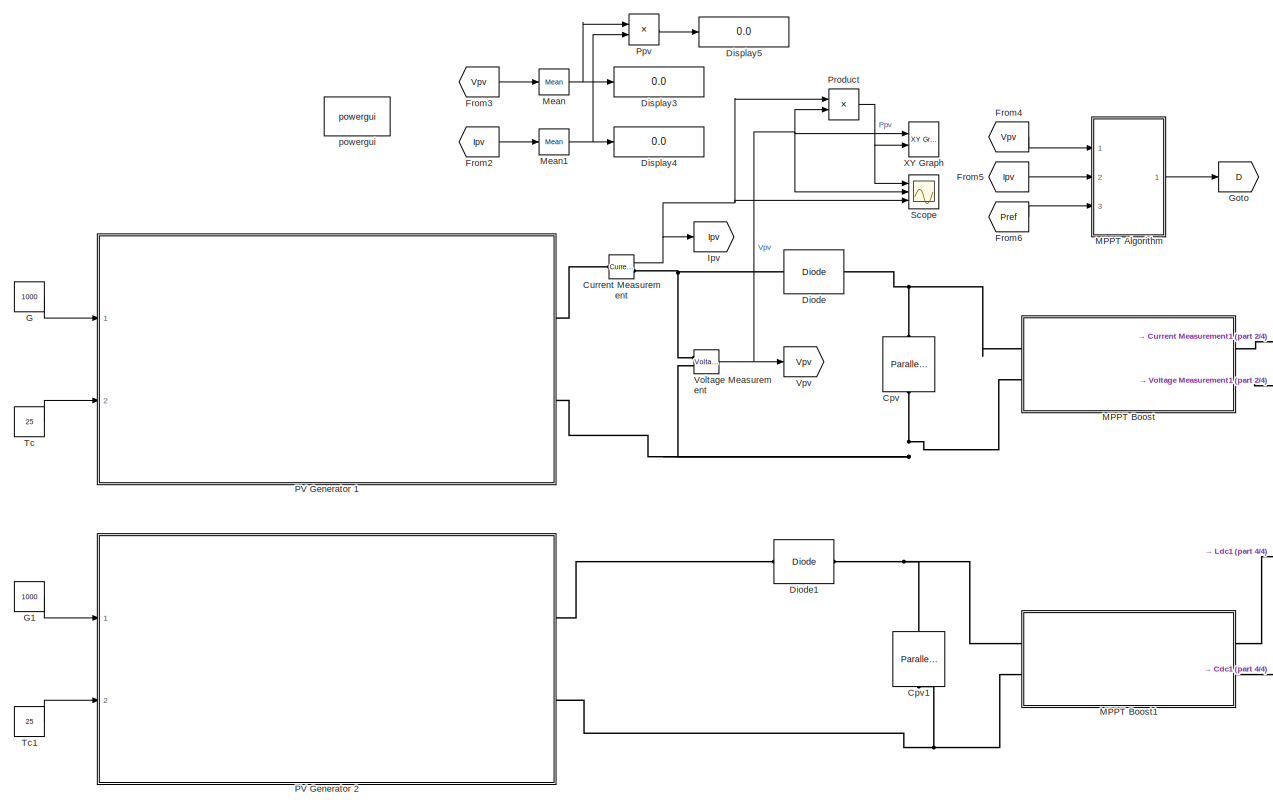
[diagram: root canvas - part 1/4, left side, full height]
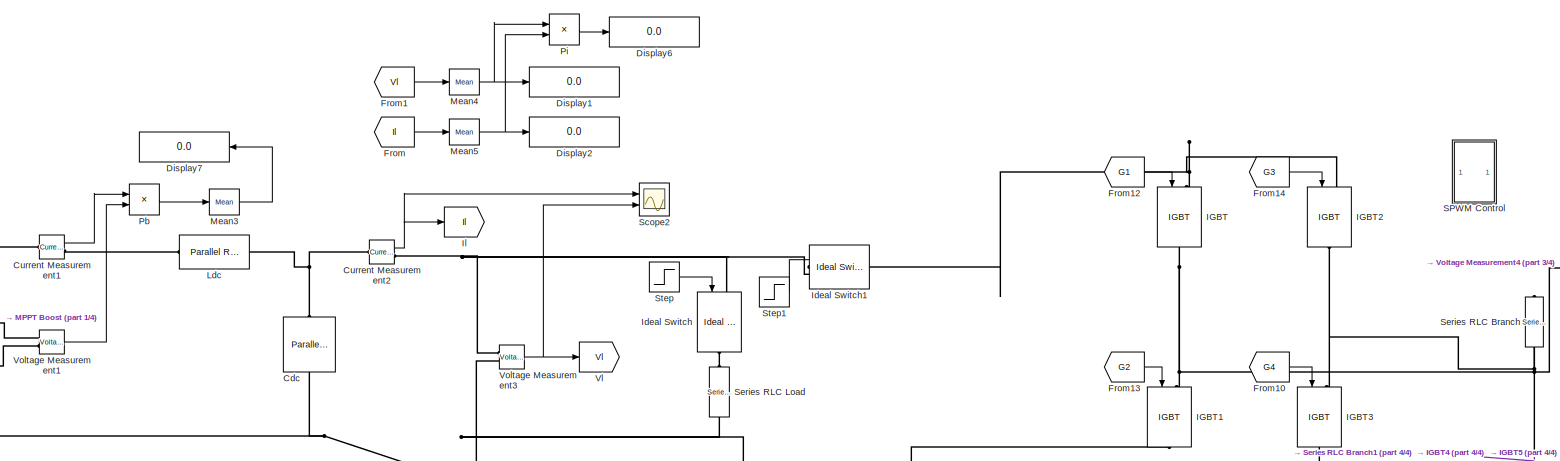
[diagram: root canvas - part 2/4, top center region]
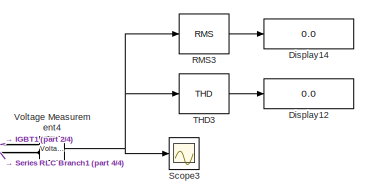
[diagram: root canvas - part 3/4, middle right region]
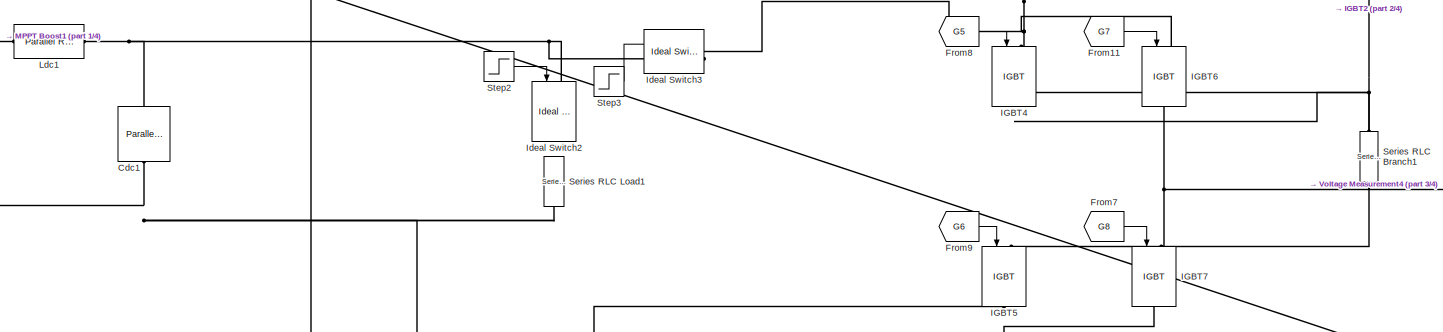
[diagram: root canvas - part 4/4, bottom center region]
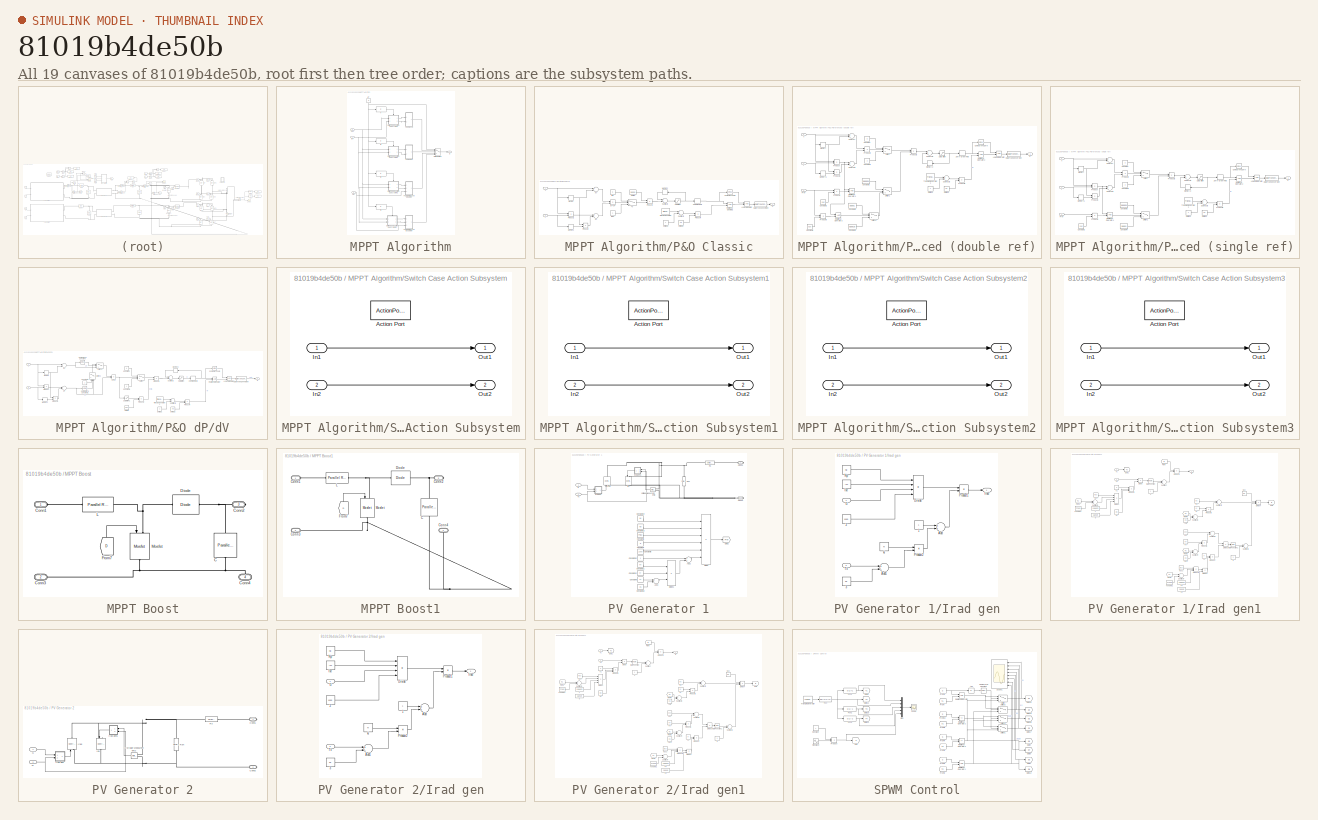
[diagram: thumbnail index - all 19 canvases of the model, root first then tree order]
MODEL slx_81019b4de50b
KIND model
CONFIG AbsTol = auto
CONFIG EnableMultiTasking = off
CONFIG FixedStep = auto
CONFIG MaxStep = auto
CONFIG MinStep = auto
CONFIG RelTol = 1e-3
CONFIG SampleTimeConstraint = Unconstrained
CONFIG Solver = ode23tb
CONFIG SolverName = ode23tb
CONFIG StartTime = 0.0
CONFIG StopTime = 2
BLOCK [Reference] Cdc  REF=powerlib/Elements/Parallel RLC Branch
  AttributesFormatString = \n
  Ports = [0, 0, 0, 0, 0, 1, 1]
  SourceBlock = powerlib/Elements/Parallel RLC Branch
  SourceType = Parallel RLC Branch
BLOCK [Reference] Cdc1  REF=powerlib/Elements/Parallel RLC Branch
  AttributesFormatString = \n
  Ports = [0, 0, 0, 0, 0, 1, 1]
  SourceBlock = powerlib/Elements/Parallel RLC Branch
  SourceType = Parallel RLC Branch
BLOCK [Reference] Cpv  REF=powerlib/Elements/Parallel RLC Branch
  AttributesFormatString = \n
  Ports = [0, 0, 0, 0, 0, 1, 1]
  SourceBlock = powerlib/Elements/Parallel RLC Branch
  SourceType = Parallel RLC Branch
BLOCK [Reference] Cpv1  REF=powerlib/Elements/Parallel RLC Branch
  AttributesFormatString = \n
  Ports = [0, 0, 0, 0, 0, 1, 1]
  SourceBlock = powerlib/Elements/Parallel RLC Branch
  SourceType = Parallel RLC Branch
BLOCK [Reference] Current Measurement  REF=powerlib/Measurements/Current Measurement
  Ports = [0, 1, 0, 0, 0, 1, 1]
  SourceBlock = powerlib/Measurements/Current Measurement
  SourceType = Current Measurement
  UserDataPersistent = on
BLOCK [Reference] Current Measurement1  REF=powerlib/Measurements/Current Measurement
  Ports = [0, 1, 0, 0, 0, 1, 1]
  SourceBlock = powerlib/Measurements/Current Measurement
  SourceType = Current Measurement
  UserDataPersistent = on
BLOCK [Reference] Current Measurement2  REF=powerlib/Measurements/Current Measurement
  Ports = [0, 1, 0, 0, 0, 1, 1]
  SourceBlock = powerlib/Measurements/Current Measurement
  SourceType = Current Measurement
  UserDataPersistent = on
BLOCK [Reference] Diode  REF=powerlib/Power
Electronics/Diode
  Ports = [0, 0, 0, 0, 0, 1, 1]
  SourceBlock = powerlib/Power\nElectronics/Diode
  SourceType = Diode
BLOCK [Reference] Diode1  REF=powerlib/Power
Electronics/Diode
  Ports = [0, 0, 0, 0, 0, 1, 1]
  SourceBlock = powerlib/Power\nElectronics/Diode
  SourceType = Diode
BLOCK [Display] Display1
  Decimation = 1
  Ports = [1]
BLOCK [Display] Display12
  Decimation = 1
  Ports = [1]
BLOCK [Display] Display14
  Decimation = 1
  Ports = [1]
BLOCK [Display] Display2
  Decimation = 1
  Ports = [1]
BLOCK [Display] Display3
  Decimation = 1
  Ports = [1]
BLOCK [Display] Display4
  Decimation = 1
  Ports = [1]
BLOCK [Display] Display5
  Decimation = 2
  Ports = [1]
BLOCK [Display] Display6
  Decimation = 2
  Ports = [1]
BLOCK [Display] Display7
  Decimation = 2
  Ports = [1]
BLOCK [From] From
  GotoTag = Il
  TagVisibility = global
BLOCK [From] From1
  GotoTag = Vl
  TagVisibility = global
BLOCK [From] From10
  GotoTag = G4
  TagVisibility = global
BLOCK [From] From11
  GotoTag = G7
  TagVisibility = global
BLOCK [From] From12
  GotoTag = G1
  TagVisibility = global
BLOCK [From] From13
  GotoTag = G2
  TagVisibility = global
BLOCK [From] From14
  GotoTag = G3
  TagVisibility = global
BLOCK [From] From2
  GotoTag = Ipv
  TagVisibility = global
BLOCK [From] From3
  GotoTag = Vpv
  TagVisibility = global
BLOCK [From] From4
  GotoTag = Vpv
  TagVisibility = global
BLOCK [From] From5
  GotoTag = Ipv
  TagVisibility = global
BLOCK [From] From6
  GotoTag = Pref
  TagVisibility = global
BLOCK [From] From7
  GotoTag = G8
  TagVisibility = global
BLOCK [From] From8
  GotoTag = G5
  TagVisibility = global
BLOCK [From] From9
  GotoTag = G6
  TagVisibility = global
BLOCK [Constant] G
  Value = 1000
BLOCK [Constant] G1
  Value = 1000
BLOCK [Goto] Goto
  GotoTag = D
  TagVisibility = global
BLOCK [Reference] IGBT  REF=powerlib/Power
Electronics/IGBT
  Ports = [1, 0, 0, 0, 0, 1, 1]
  SourceBlock = powerlib/Power\nElectronics/IGBT
  SourceType = IGBT
BLOCK [Reference] IGBT1  REF=powerlib/Power
Electronics/IGBT
  Ports = [1, 0, 0, 0, 0, 1, 1]
  SourceBlock = powerlib/Power\nElectronics/IGBT
  SourceType = IGBT
BLOCK [Reference] IGBT2  REF=powerlib/Power
Electronics/IGBT
  Ports = [1, 0, 0, 0, 0, 1, 1]
  SourceBlock = powerlib/Power\nElectronics/IGBT
  SourceType = IGBT
BLOCK [Reference] IGBT3  REF=powerlib/Power
Electronics/IGBT
  Ports = [1, 0, 0, 0, 0, 1, 1]
  SourceBlock = powerlib/Power\nElectronics/IGBT
  SourceType = IGBT
BLOCK [Reference] IGBT4  REF=powerlib/Power
Electronics/IGBT
  Ports = [1, 0, 0, 0, 0, 1, 1]
  SourceBlock = powerlib/Power\nElectronics/IGBT
  SourceType = IGBT
BLOCK [Reference] IGBT5  REF=powerlib/Power
Electronics/IGBT
  Ports = [1, 0, 0, 0, 0, 1, 1]
  SourceBlock = powerlib/Power\nElectronics/IGBT
  SourceType = IGBT
BLOCK [Reference] IGBT6  REF=powerlib/Power
Electronics/IGBT
  Ports = [1, 0, 0, 0, 0, 1, 1]
  SourceBlock = powerlib/Power\nElectronics/IGBT
  SourceType = IGBT
BLOCK [Reference] IGBT7  REF=powerlib/Power
Electronics/IGBT
  Ports = [1, 0, 0, 0, 0, 1, 1]
  SourceBlock = powerlib/Power\nElectronics/IGBT
  SourceType = IGBT
BLOCK [Reference] Ideal Switch  REF=powerlib/Power
Electronics/Ideal Switch
  Ports = [1, 0, 0, 0, 0, 1, 1]
  SourceBlock = powerlib/Power\nElectronics/Ideal Switch
  SourceType = Ideal Switch
BLOCK [Reference] Ideal Switch1  REF=powerlib/Power
Electronics/Ideal Switch
  Ports = [1, 0, 0, 0, 0, 1, 1]
  SourceBlock = powerlib/Power\nElectronics/Ideal Switch
  SourceType = Ideal Switch
BLOCK [Reference] Ideal Switch2  REF=powerlib/Power
Electronics/Ideal Switch
  Ports = [1, 0, 0, 0, 0, 1, 1]
  SourceBlock = powerlib/Power\nElectronics/Ideal Switch
  SourceType = Ideal Switch
BLOCK [Reference] Ideal Switch3  REF=powerlib/Power
Electronics/Ideal Switch
  Ports = [1, 0, 0, 0, 0, 1, 1]
  SourceBlock = powerlib/Power\nElectronics/Ideal Switch
  SourceType = Ideal Switch
BLOCK [Goto] Il
  GotoTag = Il
  TagVisibility = global
BLOCK [Goto] Ipv
  GotoTag = Ipv
  TagVisibility = global
BLOCK [Reference] Ldc  REF=powerlib/Elements/Parallel RLC Branch
  AttributesFormatString = \n
  Ports = [0, 0, 0, 0, 0, 1, 1]
  SourceBlock = powerlib/Elements/Parallel RLC Branch
  SourceType = Parallel RLC Branch
BLOCK [Reference] Ldc1  REF=powerlib/Elements/Parallel RLC Branch
  AttributesFormatString = \n
  Ports = [0, 0, 0, 0, 0, 1, 1]
  SourceBlock = powerlib/Elements/Parallel RLC Branch
  SourceType = Parallel RLC Branch
BLOCK [SubSystem] MPPT Algorithm
  Ports = [3, 1]
  RequestExecContextInheritance = off
  Variant = off
BLOCK [Outport] MPPT Algorithm/D
  IconDisplay = Port number
BLOCK [If] MPPT Algorithm/If
  IfExpression = u1 == 1
  Ports = [1, 1]
  ShowElse = off
BLOCK [If] MPPT Algorithm/If1
  IfExpression = u1 == 2
  Ports = [1, 1]
  ShowElse = off
BLOCK [If] MPPT Algorithm/If2
  IfExpression = u1 == 3
  Ports = [1, 1]
  ShowElse = off
BLOCK [If] MPPT Algorithm/If3
  IfExpression = u1 == 4
  Ports = [1, 1]
  ShowElse = off
BLOCK [Inport] MPPT Algorithm/Ipv
  IconDisplay = Port number
  Port = 2
BLOCK [MultiPortSwitch] MPPT Algorithm/Multiport Switch
  DataPortIndices = {1,2,3,4}
  DataPortOrder = Specify indices
  InputSameDT = off
  Ports = [5, 1]
  SaturateOnIntegerOverflow = off
BLOCK [Constant] MPPT Algorithm/Nº
  Value = N
BLOCK [SubSystem] MPPT Algorithm/P&O Classic
  Ports = [2, 1]
  RequestExecContextInheritance = off
  Variant = off
BLOCK [Switch] MPPT Algorithm/P&O Classic/>0
  InputSameDT = off
  SaturateOnIntegerOverflow = off
  ZeroCross = off
BLOCK [Reference] MPPT Algorithm/P&O Classic/Compare To Zero  REF=simulink/Logic and Bit
Operations/Compare
To Zero
  Ports = [1, 1]
  SourceBlock = simulink/Logic and Bit\nOperations/Compare\nTo Zero
  SourceType = Compare To Zero
BLOCK [Outport] MPPT Algorithm/P&O Classic/D
  IconDisplay = Port number
BLOCK [DataTypeConversion] MPPT Algorithm/P&O Classic/Data Type Conversion
  OutDataTypeStr = double
  RndMeth = Floor
  SaturateOnIntegerOverflow = off
BLOCK [Constant] MPPT Algorithm/P&O Classic/Delta D
  Value = 0.0001
BLOCK [Constant] MPPT Algorithm/P&O Classic/Delta D1
BLOCK [Constant] MPPT Algorithm/P&O Classic/Delta D2
  Value = 0.5
BLOCK [Inport] MPPT Algorithm/P&O Classic/I
  IconDisplay = Port number
  Port = 2
BLOCK [Logic] MPPT Algorithm/P&O Classic/Logical Operator
  AllPortsSameDT = off
  OutDataTypeStr = boolean
  Ports = [2, 1]
BLOCK [Memory] MPPT Algorithm/P&O Classic/Memory
BLOCK [Memory] MPPT Algorithm/P&O Classic/Memory1
  X0 = 8.21
BLOCK [Memory] MPPT Algorithm/P&O Classic/Memory2
  X0 = 0.5
BLOCK [Product] MPPT Algorithm/P&O Classic/Product1
  InputSameDT = off
  OutDataTypeStr = Inherit: Inherit via internal rule
  Ports = [2, 1]
  RndMeth = Floor
  SaturateOnIntegerOverflow = off
BLOCK [Product] MPPT Algorithm/P&O Classic/Product2
  InputSameDT = off
  OutDataTypeStr = Inherit: Inherit via internal rule
  Ports = [2, 1]
  RndMeth = Floor
  SaturateOnIntegerOverflow = off
BLOCK [Product] MPPT Algorithm/P&O Classic/Product3
  InputSameDT = off
  OutDataTypeStr = Inherit: Inherit via internal rule
  Ports = [2, 1]
  RndMeth = Floor
  SaturateOnIntegerOverflow = off
BLOCK [Product] MPPT Algorithm/P&O Classic/Product4
  InputSameDT = off
  OutDataTypeStr = Inherit: Inherit via internal rule
  Ports = [2, 1]
  RndMeth = Floor
  SaturateOnIntegerOverflow = off
BLOCK [RelationalOperator] MPPT Algorithm/P&O Classic/Relational Operator1
  InputSameDT = off
  OutDataTypeStr = boolean
  Ports = [2, 1]
  RndMeth = Simplest
BLOCK [Saturate] MPPT Algorithm/P&O Classic/Saturation
  InputPortMap = u0
  LowerLimit = 0
  Ports = [1, 1]
  UpperLimit = 1
BLOCK [Sum] MPPT Algorithm/P&O Classic/Subtract2
  InputSameDT = off
  OutDataTypeStr = Inherit: Inherit via internal rule
  Ports = [2, 1]
  SaturateOnIntegerOverflow = off
BLOCK [Sum] MPPT Algorithm/P&O Classic/Subtract3
  InputSameDT = off
  OutDataTypeStr = Inherit: Inherit via internal rule
  Ports = [2, 1]
  SaturateOnIntegerOverflow = off
BLOCK [Reference] MPPT Algorithm/P&O Classic/Triangle Generator  REF=powerlib_meascontrol/Pulse & Signal
Generators/Triangle
Generator
  Ports = [0, 1]
  SourceBlock = powerlib_meascontrol/Pulse & Signal\nGenerators/Triangle\nGenerator
  SourceType = Triangle Generator
BLOCK [Inport] MPPT Algorithm/P&O Classic/V
  IconDisplay = Port number
BLOCK [ZeroOrderHold] MPPT Algorithm/P&O Classic/Zero-Order Hold
  SampleTime = 1/5000
BLOCK [Sum] MPPT Algorithm/P&O Classic/dP
  InputSameDT = off
  Inputs = +-
  OutDataTypeStr = Inherit: Inherit via internal rule
  Ports = [2, 1]
  SaturateOnIntegerOverflow = off
BLOCK [Sum] MPPT Algorithm/P&O Classic/dV
  InputSameDT = off
  Inputs = +-
  OutDataTypeStr = Inherit: Inherit via internal rule
  Ports = [2, 1]
  SaturateOnIntegerOverflow = off
BLOCK [Product] MPPT Algorithm/P&O Classic/dV*dP
  InputSameDT = off
  OutDataTypeStr = Inherit: Inherit via internal rule
  Ports = [2, 1]
  RndMeth = Floor
  SaturateOnIntegerOverflow = off
BLOCK [Constant] MPPT Algorithm/P&O Classic/false
BLOCK [Constant] MPPT Algorithm/P&O Classic/true
  Value = -1
BLOCK [SubSystem] MPPT Algorithm/P&O Referenced (double ref)
  Ports = [3, 1]
  RequestExecContextInheritance = off
  Variant = off
BLOCK [Reference] MPPT Algorithm/P&O Referenced (double ref)/Compare To Zero  REF=simulink/Logic and Bit
Operations/Compare
To Zero
  Ports = [1, 1]
  SourceBlock = simulink/Logic and Bit\nOperations/Compare\nTo Zero
  SourceType = Compare To Zero
BLOCK [Constant] MPPT Algorithm/P&O Referenced (double ref)/Constant
  Value = -1
BLOCK [Constant] MPPT Algorithm/P&O Referenced (double ref)/Constant1
BLOCK [Constant] MPPT Algorithm/P&O Referenced (double ref)/Constant2
  Value = 0.95
BLOCK [Constant] MPPT Algorithm/P&O Referenced (double ref)/Constant3
  Value = 0.00001
BLOCK [Constant] MPPT Algorithm/P&O Referenced (double ref)/Constant4
  Value = 0.00015
BLOCK [Constant] MPPT Algorithm/P&O Referenced (double ref)/Constant5
  Value = 0.90
BLOCK [Constant] MPPT Algorithm/P&O Referenced (double ref)/Constant6
  Value = 0.0001
BLOCK [Outport] MPPT Algorithm/P&O Referenced (double ref)/D
  IconDisplay = Port number
BLOCK [DataTypeConversion] MPPT Algorithm/P&O Referenced (double ref)/Data Type Conversion
  OutDataTypeStr = double
  RndMeth = Floor
  SaturateOnIntegerOverflow = off
BLOCK [Constant] MPPT Algorithm/P&O Referenced (double ref)/Delta D1
BLOCK [Constant] MPPT Algorithm/P&O Referenced (double ref)/Delta D2
  Value = 0.5
BLOCK [Inport] MPPT Algorithm/P&O Referenced (double ref)/I
  IconDisplay = Port number
  Port = 2
BLOCK [Logic] MPPT Algorithm/P&O Referenced (double ref)/Logical Operator
  AllPortsSameDT = off
  OutDataTypeStr = boolean
  Ports = [2, 1]
BLOCK [Memory] MPPT Algorithm/P&O Referenced (double ref)/Memory
BLOCK [Memory] MPPT Algorithm/P&O Referenced (double ref)/Memory1
  X0 = 8.21
BLOCK [Memory] MPPT Algorithm/P&O Referenced (double ref)/Memory2
  X0 = 0.5
BLOCK [Inport] MPPT Algorithm/P&O Referenced (double ref)/Pref
  IconDisplay = Port number
  Port = 3
BLOCK [Product] MPPT Algorithm/P&O Referenced (double ref)/Product
  InputSameDT = off
  OutDataTypeStr = Inherit: Inherit via internal rule
  Ports = [2, 1]
  RndMeth = Floor
  SaturateOnIntegerOverflow = off
BLOCK [Product] MPPT Algorithm/P&O Referenced (double ref)/Product1
  InputSameDT = off
  OutDataTypeStr = Inherit: Inherit via internal rule
  Ports = [2, 1]
  RndMeth = Floor
  SaturateOnIntegerOverflow = off
BLOCK [Product] MPPT Algorithm/P&O Referenced (double ref)/Product2
  InputSameDT = off
  OutDataTypeStr = Inherit: Inherit via internal rule
  Ports = [2, 1]
  RndMeth = Floor
  SaturateOnIntegerOverflow = off
BLOCK [Product] MPPT Algorithm/P&O Referenced (double ref)/Product3
  InputSameDT = off
  OutDataTypeStr = Inherit: Inherit via internal rule
  Ports = [2, 1]
  RndMeth = Floor
  SaturateOnIntegerOverflow = off
BLOCK [Product] MPPT Algorithm/P&O Referenced (double ref)/Product4
  InputSameDT = off
  OutDataTypeStr = Inherit: Inherit via internal rule
  Ports = [2, 1]
  RndMeth = Floor
  SaturateOnIntegerOverflow = off
BLOCK [Product] MPPT Algorithm/P&O Referenced (double ref)/Product5
  InputSameDT = off
  OutDataTypeStr = Inherit: Inherit via internal rule
  Ports = [2, 1]
  RndMeth = Floor
  SaturateOnIntegerOverflow = off
BLOCK [Product] MPPT Algorithm/P&O Referenced (double ref)/Product6
  InputSameDT = off
  OutDataTypeStr = Inherit: Inherit via internal rule
  Ports = [2, 1]
  RndMeth = Floor
  SaturateOnIntegerOverflow = off
BLOCK [RelationalOperator] MPPT Algorithm/P&O Referenced (double ref)/Relational Operator1
  InputSameDT = off
  OutDataTypeStr = boolean
  Ports = [2, 1]
  RndMeth = Simplest
BLOCK [RelationalOperator] MPPT Algorithm/P&O Referenced (double ref)/Relational Operator2
  InputSameDT = off
  OutDataTypeStr = boolean
  Ports = [2, 1]
  RndMeth = Simplest
BLOCK [RelationalOperator] MPPT Algorithm/P&O Referenced (double ref)/Relational Operator3
  InputSameDT = off
  OutDataTypeStr = boolean
  Ports = [2, 1]
  RndMeth = Simplest
BLOCK [Saturate] MPPT Algorithm/P&O Referenced (double ref)/Saturation
  InputPortMap = u0
  LowerLimit = 0
  Ports = [1, 1]
  UpperLimit = 1
BLOCK [Sum] MPPT Algorithm/P&O Referenced (double ref)/Subtract
  InputSameDT = off
  Inputs = +-
  OutDataTypeStr = Inherit: Inherit via internal rule
  Ports = [2, 1]
  SaturateOnIntegerOverflow = off
BLOCK [Sum] MPPT Algorithm/P&O Referenced (double ref)/Subtract1
  InputSameDT = off
  Inputs = +-
  OutDataTypeStr = Inherit: Inherit via internal rule
  Ports = [2, 1]
  SaturateOnIntegerOverflow = off
BLOCK [Sum] MPPT Algorithm/P&O Referenced (double ref)/Subtract2
  InputSameDT = off
  OutDataTypeStr = Inherit: Inherit via internal rule
  Ports = [2, 1]
  SaturateOnIntegerOverflow = off
BLOCK [Sum] MPPT Algorithm/P&O Referenced (double ref)/Subtract3
  InputSameDT = off
  OutDataTypeStr = Inherit: Inherit via internal rule
  Ports = [2, 1]
  SaturateOnIntegerOverflow = off
BLOCK [Switch] MPPT Algorithm/P&O Referenced (double ref)/Switch
  InputSameDT = off
  SaturateOnIntegerOverflow = off
BLOCK [Switch] MPPT Algorithm/P&O Referenced (double ref)/Switch1
  Criteria = u2 > Threshold
  InputSameDT = off
  SaturateOnIntegerOverflow = off
BLOCK [Switch] MPPT Algorithm/P&O Referenced (double ref)/Switch2
  Criteria = u2 > Threshold
  InputSameDT = off
  SaturateOnIntegerOverflow = off
BLOCK [Reference] MPPT Algorithm/P&O Referenced (double ref)/Triangle Generator1  REF=powerlib_meascontrol/Pulse & Signal
Generators/Triangle
Generator
  Ports = [0, 1]
  SourceBlock = powerlib_meascontrol/Pulse & Signal\nGenerators/Triangle\nGenerator
  SourceType = Triangle Generator
BLOCK [Inport] MPPT Algorithm/P&O Referenced (double ref)/V
  IconDisplay = Port number
BLOCK [ZeroOrderHold] MPPT Algorithm/P&O Referenced (double ref)/Zero-Order Hold
  SampleTime = 1/5000
BLOCK [SubSystem] MPPT Algorithm/P&O Referenced (single ref)
  Ports = [3, 1]
  RequestExecContextInheritance = off
  Variant = off
BLOCK [Reference] MPPT Algorithm/P&O Referenced (single ref)/Compare To Zero  REF=simulink/Logic and Bit
Operations/Compare
To Zero
  Ports = [1, 1]
  SourceBlock = simulink/Logic and Bit\nOperations/Compare\nTo Zero
  SourceType = Compare To Zero
BLOCK [Constant] MPPT Algorithm/P&O Referenced (single ref)/Constant
  Value = -1
BLOCK [Constant] MPPT Algorithm/P&O Referenced (single ref)/Constant1
BLOCK [Constant] MPPT Algorithm/P&O Referenced (single ref)/Constant2
  Value = 0.95
BLOCK [Constant] MPPT Algorithm/P&O Referenced (single ref)/Constant3
  Value = 0.00001
BLOCK [Constant] MPPT Algorithm/P&O Referenced (single ref)/Constant4
  Value = 0.0001
BLOCK [Outport] MPPT Algorithm/P&O Referenced (single ref)/D
  IconDisplay = Port number
BLOCK [DataTypeConversion] MPPT Algorithm/P&O Referenced (single ref)/Data Type Conversion
  OutDataTypeStr = double
  RndMeth = Floor
  SaturateOnIntegerOverflow = off
BLOCK [Constant] MPPT Algorithm/P&O Referenced (single ref)/Delta D1
BLOCK [Constant] MPPT Algorithm/P&O Referenced (single ref)/Delta D2
  Value = 0.5
BLOCK [Inport] MPPT Algorithm/P&O Referenced (single ref)/I
  IconDisplay = Port number
  Port = 2
BLOCK [Logic] MPPT Algorithm/P&O Referenced (single ref)/Logical Operator
  AllPortsSameDT = off
  OutDataTypeStr = boolean
  Ports = [2, 1]
BLOCK [Memory] MPPT Algorithm/P&O Referenced (single ref)/Memory
BLOCK [Memory] MPPT Algorithm/P&O Referenced (single ref)/Memory1
  X0 = 8.21
BLOCK [Memory] MPPT Algorithm/P&O Referenced (single ref)/Memory2
  X0 = 0.5
BLOCK [Inport] MPPT Algorithm/P&O Referenced (single ref)/Pref
  IconDisplay = Port number
  Port = 3
BLOCK [Product] MPPT Algorithm/P&O Referenced (single ref)/Product
  InputSameDT = off
  OutDataTypeStr = Inherit: Inherit via internal rule
  Ports = [2, 1]
  RndMeth = Floor
  SaturateOnIntegerOverflow = off
BLOCK [Product] MPPT Algorithm/P&O Referenced (single ref)/Product1
  InputSameDT = off
  OutDataTypeStr = Inherit: Inherit via internal rule
  Ports = [2, 1]
  RndMeth = Floor
  SaturateOnIntegerOverflow = off
BLOCK [Product] MPPT Algorithm/P&O Referenced (single ref)/Product2
  InputSameDT = off
  OutDataTypeStr = Inherit: Inherit via internal rule
  Ports = [2, 1]
  RndMeth = Floor
  SaturateOnIntegerOverflow = off
BLOCK [Product] MPPT Algorithm/P&O Referenced (single ref)/Product3
  InputSameDT = off
  OutDataTypeStr = Inherit: Inherit via internal rule
  Ports = [2, 1]
  RndMeth = Floor
  SaturateOnIntegerOverflow = off
BLOCK [Product] MPPT Algorithm/P&O Referenced (single ref)/Product4
  InputSameDT = off
  OutDataTypeStr = Inherit: Inherit via internal rule
  Ports = [2, 1]
  RndMeth = Floor
  SaturateOnIntegerOverflow = off
BLOCK [Product] MPPT Algorithm/P&O Referenced (single ref)/Product5
  InputSameDT = off
  OutDataTypeStr = Inherit: Inherit via internal rule
  Ports = [2, 1]
  RndMeth = Floor
  SaturateOnIntegerOverflow = off
BLOCK [RelationalOperator] MPPT Algorithm/P&O Referenced (single ref)/Relational Operator1
  InputSameDT = off
  OutDataTypeStr = boolean
  Ports = [2, 1]
  RndMeth = Simplest
BLOCK [RelationalOperator] MPPT Algorithm/P&O Referenced (single ref)/Relational Operator2
  InputSameDT = off
  OutDataTypeStr = boolean
  Ports = [2, 1]
  RndMeth = Simplest
BLOCK [Saturate] MPPT Algorithm/P&O Referenced (single ref)/Saturation
  InputPortMap = u0
  LowerLimit = 0
  Ports = [1, 1]
  UpperLimit = 1
BLOCK [Sum] MPPT Algorithm/P&O Referenced (single ref)/Subtract
  InputSameDT = off
  Inputs = +-
  OutDataTypeStr = Inherit: Inherit via internal rule
  Ports = [2, 1]
  SaturateOnIntegerOverflow = off
BLOCK [Sum] MPPT Algorithm/P&O Referenced (single ref)/Subtract1
  InputSameDT = off
  Inputs = +-
  OutDataTypeStr = Inherit: Inherit via internal rule
  Ports = [2, 1]
  SaturateOnIntegerOverflow = off
BLOCK [Sum] MPPT Algorithm/P&O Referenced (single ref)/Subtract2
  InputSameDT = off
  OutDataTypeStr = Inherit: Inherit via internal rule
  Ports = [2, 1]
  SaturateOnIntegerOverflow = off
BLOCK [Sum] MPPT Algorithm/P&O Referenced (single ref)/Subtract3
  InputSameDT = off
  OutDataTypeStr = Inherit: Inherit via internal rule
  Ports = [2, 1]
  SaturateOnIntegerOverflow = off
BLOCK [Switch] MPPT Algorithm/P&O Referenced (single ref)/Switch
  InputSameDT = off
  SaturateOnIntegerOverflow = off
BLOCK [Switch] MPPT Algorithm/P&O Referenced (single ref)/Switch1
  Criteria = u2 > Threshold
  InputSameDT = off
  SaturateOnIntegerOverflow = off
BLOCK [Reference] MPPT Algorithm/P&O Referenced (single ref)/Triangle Generator1  REF=powerlib_meascontrol/Pulse & Signal
Generators/Triangle
Generator
  Ports = [0, 1]
  SourceBlock = powerlib_meascontrol/Pulse & Signal\nGenerators/Triangle\nGenerator
  SourceType = Triangle Generator
BLOCK [Inport] MPPT Algorithm/P&O Referenced (single ref)/V
  IconDisplay = Port number
BLOCK [ZeroOrderHold] MPPT Algorithm/P&O Referenced (single ref)/Zero-Order Hold
  SampleTime = 1/5000
BLOCK [SubSystem] MPPT Algorithm/P&O dP//dV
  Ports = [2, 1]
  RequestExecContextInheritance = off
  Variant = off
BLOCK [Reference] MPPT Algorithm/P&O dP//dV/Compare To Constant  REF=simulink/Logic and Bit
Operations/Compare
To Constant
  Ports = [1, 1]
  SourceBlock = simulink/Logic and Bit\nOperations/Compare\nTo Constant
  SourceType = Compare To Constant
BLOCK [Reference] MPPT Algorithm/P&O dP//dV/Compare To Constant1  REF=simulink/Logic and Bit
Operations/Compare
To Constant
  Ports = [1, 1]
  SourceBlock = simulink/Logic and Bit\nOperations/Compare\nTo Constant
  SourceType = Compare To Constant
BLOCK [Reference] MPPT Algorithm/P&O dP//dV/Compare To Zero  REF=simulink/Logic and Bit
Operations/Compare
To Zero
  Ports = [1, 1]
  SourceBlock = simulink/Logic and Bit\nOperations/Compare\nTo Zero
  SourceType = Compare To Zero
BLOCK [Constant] MPPT Algorithm/P&O dP//dV/Constant
  Value = -1
BLOCK [Constant] MPPT Algorithm/P&O dP//dV/Constant1
BLOCK [Constant] MPPT Algorithm/P&O dP//dV/Constant2
BLOCK [Outport] MPPT Algorithm/P&O dP//dV/D
  IconDisplay = Port number
BLOCK [DataTypeConversion] MPPT Algorithm/P&O dP//dV/Data Type Conversion
  OutDataTypeStr = double
  RndMeth = Floor
  SaturateOnIntegerOverflow = off
BLOCK [Constant] MPPT Algorithm/P&O dP//dV/Delta D
  Value = 0.001
BLOCK [Constant] MPPT Algorithm/P&O dP//dV/Delta D1
BLOCK [Constant] MPPT Algorithm/P&O dP//dV/Delta D2
  Value = 0.5
BLOCK [Inport] MPPT Algorithm/P&O dP//dV/I
  IconDisplay = Port number
  Port = 2
BLOCK [Logic] MPPT Algorithm/P&O dP//dV/Logical Operator
  AllPortsSameDT = off
  OutDataTypeStr = boolean
  Ports = [2, 1]
BLOCK [Memory] MPPT Algorithm/P&O dP//dV/Memory
BLOCK [Memory] MPPT Algorithm/P&O dP//dV/Memory1
  X0 = 8.21
BLOCK [Memory] MPPT Algorithm/P&O dP//dV/Memory2
  X0 = 0.5
BLOCK [Product] MPPT Algorithm/P&O dP//dV/Product
  InputSameDT = off
  OutDataTypeStr = Inherit: Inherit via internal rule
  Ports = [2, 1]
  RndMeth = Floor
  SaturateOnIntegerOverflow = off
BLOCK [Product] MPPT Algorithm/P&O dP//dV/Product1
  InputSameDT = off
  OutDataTypeStr = Inherit: Inherit via internal rule
  Ports = [2, 1]
  RndMeth = Floor
  SaturateOnIntegerOverflow = off
BLOCK [Product] MPPT Algorithm/P&O dP//dV/Product2
  InputSameDT = off
  OutDataTypeStr = Inherit: Inherit via internal rule
  Ports = [2, 1]
  RndMeth = Floor
  SaturateOnIntegerOverflow = off
BLOCK [Product] MPPT Algorithm/P&O dP//dV/Product3
  InputSameDT = off
  OutDataTypeStr = Inherit: Inherit via internal rule
  Ports = [2, 1]
  RndMeth = Floor
  SaturateOnIntegerOverflow = off
BLOCK [Product] MPPT Algorithm/P&O dP//dV/Product4
  InputSameDT = off
  OutDataTypeStr = Inherit: Inherit via internal rule
  Ports = [2, 1]
  RndMeth = Floor
  SaturateOnIntegerOverflow = off
BLOCK [RelationalOperator] MPPT Algorithm/P&O dP//dV/Relational Operator
  InputSameDT = off
  OutDataTypeStr = boolean
  Ports = [2, 1]
  RndMeth = Simplest
BLOCK [Saturate] MPPT Algorithm/P&O dP//dV/Saturation
  InputPortMap = u0
  LowerLimit = 0
  Ports = [1, 1]
  UpperLimit = 1
  ZeroCross = off
BLOCK [Saturate] MPPT Algorithm/P&O dP//dV/Saturation1
  InputPortMap = u0
  LowerLimit = 0.1
  Ports = [1, 1]
  UpperLimit = 1
  ZeroCross = off
BLOCK [Sum] MPPT Algorithm/P&O dP//dV/Subtract2
  InputSameDT = off
  OutDataTypeStr = Inherit: Inherit via internal rule
  Ports = [2, 1]
  SaturateOnIntegerOverflow = off
BLOCK [Sum] MPPT Algorithm/P&O dP//dV/Subtract3
  InputSameDT = off
  OutDataTypeStr = Inherit: Inherit via internal rule
  Ports = [2, 1]
  SaturateOnIntegerOverflow = off
BLOCK [Switch] MPPT Algorithm/P&O dP//dV/Switch
  InputSameDT = off
  SaturateOnIntegerOverflow = off
  ZeroCross = off
BLOCK [Switch] MPPT Algorithm/P&O dP//dV/Switch1
  Criteria = u2 > Threshold
  InputSameDT = off
  SaturateOnIntegerOverflow = off
  ZeroCross = off
BLOCK [Switch] MPPT Algorithm/P&O dP//dV/Switch2
  Criteria = u2 > Threshold
  InputSameDT = off
  SaturateOnIntegerOverflow = off
  ZeroCross = off
BLOCK [Reference] MPPT Algorithm/P&O dP//dV/Triangle Generator1  REF=powerlib_meascontrol/Pulse & Signal
Generators/Triangle
Generator
  Ports = [0, 1]
  SourceBlock = powerlib_meascontrol/Pulse & Signal\nGenerators/Triangle\nGenerator
  SourceType = Triangle Generator
BLOCK [Inport] MPPT Algorithm/P&O dP//dV/V
  IconDisplay = Port number
BLOCK [ZeroOrderHold] MPPT Algorithm/P&O dP//dV/Zero-Order Hold
  SampleTime = 1/5000
BLOCK [Sum] MPPT Algorithm/P&O dP//dV/dP
  InputSameDT = off
  Inputs = +-
  OutDataTypeStr = Inherit: Inherit via internal rule
  Ports = [2, 1]
  SaturateOnIntegerOverflow = off
BLOCK [Product] MPPT Algorithm/P&O dP//dV/dP//dV
  InputSameDT = off
  Inputs = /*
  OutDataTypeStr = Inherit: Inherit via internal rule
  Ports = [2, 1]
  RndMeth = Floor
  SaturateOnIntegerOverflow = off
BLOCK [Sum] MPPT Algorithm/P&O dP//dV/dV
  InputSameDT = off
  Inputs = +-
  OutDataTypeStr = Inherit: Inherit via internal rule
  Ports = [2, 1]
  SaturateOnIntegerOverflow = off
BLOCK [Inport] MPPT Algorithm/Pref
  IconDisplay = Port number
  Port = 3
BLOCK [SubSystem] MPPT Algorithm/Switch Case Action Subsystem
  Ports = [2, 2, 0, 0, 0, 0, 0, 1]
  RequestExecContextInheritance = off
  TreatAsAtomicUnit = on
  Variant = off
BLOCK [ActionPort] MPPT Algorithm/Switch Case Action Subsystem/Action Port
  ActionType = then
BLOCK [Inport] MPPT Algorithm/Switch Case Action Subsystem/In1
  IconDisplay = Port number
BLOCK [Inport] MPPT Algorithm/Switch Case Action Subsystem/In2
  IconDisplay = Port number
  Port = 2
BLOCK [Outport] MPPT Algorithm/Switch Case Action Subsystem/Out1
  IconDisplay = Port number
BLOCK [Outport] MPPT Algorithm/Switch Case Action Subsystem/Out2
  IconDisplay = Port number
  Port = 2
BLOCK [SubSystem] MPPT Algorithm/Switch Case Action Subsystem1
  Ports = [2, 2, 0, 0, 0, 0, 0, 1]
  RequestExecContextInheritance = off
  TreatAsAtomicUnit = on
  Variant = off
BLOCK [ActionPort] MPPT Algorithm/Switch Case Action Subsystem1/Action Port
  ActionType = then
BLOCK [Inport] MPPT Algorithm/Switch Case Action Subsystem1/In1
  IconDisplay = Port number
BLOCK [Inport] MPPT Algorithm/Switch Case Action Subsystem1/In2
  IconDisplay = Port number
  Port = 2
BLOCK [Outport] MPPT Algorithm/Switch Case Action Subsystem1/Out1
  IconDisplay = Port number
BLOCK [Outport] MPPT Algorithm/Switch Case Action Subsystem1/Out2
  IconDisplay = Port number
  Port = 2
BLOCK [SubSystem] MPPT Algorithm/Switch Case Action Subsystem2
  Ports = [2, 2, 0, 0, 0, 0, 0, 1]
  RequestExecContextInheritance = off
  TreatAsAtomicUnit = on
  Variant = off
BLOCK [ActionPort] MPPT Algorithm/Switch Case Action Subsystem2/Action Port
  ActionType = then
BLOCK [Inport] MPPT Algorithm/Switch Case Action Subsystem2/In1
  IconDisplay = Port number
BLOCK [Inport] MPPT Algorithm/Switch Case Action Subsystem2/In2
  IconDisplay = Port number
  Port = 2
BLOCK [Outport] MPPT Algorithm/Switch Case Action Subsystem2/Out1
  IconDisplay = Port number
BLOCK [Outport] MPPT Algorithm/Switch Case Action Subsystem2/Out2
  IconDisplay = Port number
  Port = 2
BLOCK [SubSystem] MPPT Algorithm/Switch Case Action Subsystem3
  Ports = [2, 2, 0, 0, 0, 0, 0, 1]
  RequestExecContextInheritance = off
  TreatAsAtomicUnit = on
  Variant = off
BLOCK [ActionPort] MPPT Algorithm/Switch Case Action Subsystem3/Action Port
  ActionType = then
BLOCK [Inport] MPPT Algorithm/Switch Case Action Subsystem3/In1
  IconDisplay = Port number
BLOCK [Inport] MPPT Algorithm/Switch Case Action Subsystem3/In2
  IconDisplay = Port number
  Port = 2
BLOCK [Outport] MPPT Algorithm/Switch Case Action Subsystem3/Out1
  IconDisplay = Port number
BLOCK [Outport] MPPT Algorithm/Switch Case Action Subsystem3/Out2
  IconDisplay = Port number
  Port = 2
BLOCK [Inport] MPPT Algorithm/Vpv
  IconDisplay = Port number
BLOCK [SubSystem] MPPT Boost
  Ports = [0, 0, 0, 0, 0, 2, 2]
  RequestExecContextInheritance = off
  Variant = off
BLOCK [Reference] MPPT Boost/C  REF=powerlib/Elements/Parallel RLC Branch
  AttributesFormatString = \n
  Ports = [0, 0, 0, 0, 0, 1, 1]
  SourceBlock = powerlib/Elements/Parallel RLC Branch
  SourceType = Parallel RLC Branch
BLOCK [PMIOPort] MPPT Boost/Conn1
  Port = 1
  Side = Left
BLOCK [PMIOPort] MPPT Boost/Conn2
  Port = 3
  Side = Right
BLOCK [PMIOPort] MPPT Boost/Conn3
  Port = 2
  Side = Left
BLOCK [PMIOPort] MPPT Boost/Conn4
  Port = 4
  Side = Right
BLOCK [Reference] MPPT Boost/Diode  REF=powerlib/Power
Electronics/Diode
  Ports = [0, 0, 0, 0, 0, 1, 1]
  SourceBlock = powerlib/Power\nElectronics/Diode
  SourceType = Diode
BLOCK [From] MPPT Boost/From7
  GotoTag = D
  TagVisibility = global
BLOCK [Reference] MPPT Boost/L  REF=powerlib/Elements/Parallel RLC Branch
  AttributesFormatString = \n
  Ports = [0, 0, 0, 0, 0, 1, 1]
  SourceBlock = powerlib/Elements/Parallel RLC Branch
  SourceType = Parallel RLC Branch
BLOCK [Reference] MPPT Boost/Mosfet  REF=powerlib/Power
Electronics/Mosfet
  Ports = [1, 0, 0, 0, 0, 1, 1]
  SourceBlock = powerlib/Power\nElectronics/Mosfet
  SourceType = Mosfet
BLOCK [SubSystem] MPPT Boost1
  Ports = [0, 0, 0, 0, 0, 2, 2]
  RequestExecContextInheritance = off
  Variant = off
BLOCK [Reference] MPPT Boost1/C  REF=powerlib/Elements/Parallel RLC Branch
  AttributesFormatString = \n
  Ports = [0, 0, 0, 0, 0, 1, 1]
  SourceBlock = powerlib/Elements/Parallel RLC Branch
  SourceType = Parallel RLC Branch
BLOCK [PMIOPort] MPPT Boost1/Conn1
  Port = 1
  Side = Left
BLOCK [PMIOPort] MPPT Boost1/Conn2
  Port = 3
  Side = Right
BLOCK [PMIOPort] MPPT Boost1/Conn3
  Port = 2
  Side = Left
BLOCK [PMIOPort] MPPT Boost1/Conn4
  Port = 4
  Side = Right
BLOCK [Reference] MPPT Boost1/Diode  REF=powerlib/Power
Electronics/Diode
  Ports = [0, 0, 0, 0, 0, 1, 1]
  SourceBlock = powerlib/Power\nElectronics/Diode
  SourceType = Diode
BLOCK [From] MPPT Boost1/From7
  GotoTag = D
  TagVisibility = global
BLOCK [Reference] MPPT Boost1/L  REF=powerlib/Elements/Parallel RLC Branch
  AttributesFormatString = \n
  Ports = [0, 0, 0, 0, 0, 1, 1]
  SourceBlock = powerlib/Elements/Parallel RLC Branch
  SourceType = Parallel RLC Branch
BLOCK [Reference] MPPT Boost1/Mosfet  REF=powerlib/Power
Electronics/Mosfet
  Ports = [1, 0, 0, 0, 0, 1, 1]
  SourceBlock = powerlib/Power\nElectronics/Mosfet
  SourceType = Mosfet
BLOCK [Reference] Mean  REF=powerlib_meascontrol/Measurements/Mean
  Ports = [1, 1]
  SourceBlock = powerlib_meascontrol/Measurements/Mean
  SourceType = Mean
BLOCK [Reference] Mean1  REF=powerlib_meascontrol/Measurements/Mean
  Ports = [1, 1]
  SourceBlock = powerlib_meascontrol/Measurements/Mean
  SourceType = Mean
BLOCK [Reference] Mean3  REF=powerlib_meascontrol/Measurements/Mean
  Ports = [1, 1]
  SourceBlock = powerlib_meascontrol/Measurements/Mean
  SourceType = Mean
BLOCK [Reference] Mean4  REF=powerlib_meascontrol/Measurements/Mean
  Ports = [1, 1]
  SourceBlock = powerlib_meascontrol/Measurements/Mean
  SourceType = Mean
BLOCK [Reference] Mean5  REF=powerlib_meascontrol/Measurements/Mean
  Ports = [1, 1]
  SourceBlock = powerlib_meascontrol/Measurements/Mean
  SourceType = Mean
BLOCK [SubSystem] PV Generator 1
  Ports = [2, 0, 0, 0, 0, 0, 2]
  RequestExecContextInheritance = off
  Variant = off
BLOCK [Sum] PV Generator 1/Add2
  InputSameDT = off
  OutDataTypeStr = Inherit: Inherit via internal rule
  Ports = [2, 1]
  SaturateOnIntegerOverflow = off
BLOCK [Sum] PV Generator 1/Add3
  InputSameDT = off
  Inputs = +-
  OutDataTypeStr = Inherit: Inherit via internal rule
  Ports = [2, 1]
  SaturateOnIntegerOverflow = off
BLOCK [PMIOPort] PV Generator 1/Conn1
  Port = 1
  Side = Right
BLOCK [PMIOPort] PV Generator 1/Conn2
  Port = 2
  Side = Right
BLOCK [Constant] PV Generator 1/Constant10
  Value = 25
BLOCK [Constant] PV Generator 1/Constant11
  Value = kv
BLOCK [Constant] PV Generator 1/Constant12
  Value = ki
BLOCK [Constant] PV Generator 1/Constant13
  Value = Np
BLOCK [Constant] PV Generator 1/Constant14
  Value = Ns
BLOCK [Constant] PV Generator 1/Constant15
BLOCK [Constant] PV Generator 1/Constant6
  Value = Pmax
BLOCK [Constant] PV Generator 1/Constant7
  Value = G
BLOCK [Constant] PV Generator 1/Constant8
  Value = 1000
BLOCK [Constant] PV Generator 1/Constant9
  Value = Tc
BLOCK [Product] PV Generator 1/Divide
  InputSameDT = off
  Inputs = ****/*
  OutDataTypeStr = Inherit: Inherit via internal rule
  Ports = [6, 1]
  RndMeth = Floor
  SaturateOnIntegerOverflow = off
BLOCK [Product] PV Generator 1/Divide1
  InputSameDT = off
  Inputs = ***
  OutDataTypeStr = Inherit: Inherit via internal rule
  Ports = [3, 1]
  RndMeth = Floor
  SaturateOnIntegerOverflow = off
BLOCK [Inport] PV Generator 1/G
  IconDisplay = Port number
BLOCK [Goto] PV Generator 1/Goto2
  GotoTag = Pref
  TagVisibility = global
BLOCK [Reference] PV Generator 1/Id1  REF=powerlib/Electrical
Sources/Controlled Current Source
  Ports = [1, 0, 0, 0, 0, 1, 1]
  SourceBlock = powerlib/Electrical\nSources/Controlled Current Source
  SourceType = Controlled Current Source
BLOCK [Reference] PV Generator 1/Irad  REF=powerlib/Electrical
Sources/Controlled Current Source
  Ports = [1, 0, 0, 0, 0, 1, 1]
  SourceBlock = powerlib/Electrical\nSources/Controlled Current Source
  SourceType = Controlled Current Source
BLOCK [SubSystem] PV Generator 1/Irad gen
  Ports = [2, 1]
  RequestExecContextInheritance = off
  ShowPortLabels = SignalName
  Variant = off
BLOCK [Constant] PV Generator 1/Irad gen/1
BLOCK [Constant] PV Generator 1/Irad gen/2
  Value = 1000
BLOCK [Constant] PV Generator 1/Irad gen/3
  Value = 25
BLOCK [Sum] PV Generator 1/Irad gen/Add
  InputSameDT = off
  OutDataTypeStr = Inherit: Inherit via internal rule
  Ports = [2, 1]
  SaturateOnIntegerOverflow = off
BLOCK [Sum] PV Generator 1/Irad gen/Add1
  InputSameDT = off
  Inputs = +-
  OutDataTypeStr = Inherit: Inherit via internal rule
  Ports = [2, 1]
  SaturateOnIntegerOverflow = off
BLOCK [Product] PV Generator 1/Irad gen/Divide
  InputSameDT = off
  Inputs = ***/
  OutDataTypeStr = Inherit: Inherit via internal rule
  Ports = [4, 1]
  RndMeth = Floor
  SaturateOnIntegerOverflow = off
BLOCK [Inport] PV Generator 1/Irad gen/G
  IconDisplay = Port number
BLOCK [Outport] PV Generator 1/Irad gen/Irad
  IconDisplay = Port number
BLOCK [Constant] PV Generator 1/Irad gen/Isc
  Value = Isc
BLOCK [Constant] PV Generator 1/Irad gen/Np
  Value = Np
BLOCK [Product] PV Generator 1/Irad gen/Product1
  InputSameDT = off
  OutDataTypeStr = Inherit: Inherit via internal rule
  Ports = [2, 1]
  RndMeth = Floor
  SaturateOnIntegerOverflow = off
BLOCK [Product] PV Generator 1/Irad gen/Product2
  InputSameDT = off
  OutDataTypeStr = Inherit: Inherit via internal rule
  Ports = [2, 1]
  RndMeth = Floor
  SaturateOnIntegerOverflow = off
BLOCK [Inport] PV Generator 1/Irad gen/Tc
  IconDisplay = Port number
  Port = 2
BLOCK [Constant] PV Generator 1/Irad gen/ki
  Value = ki
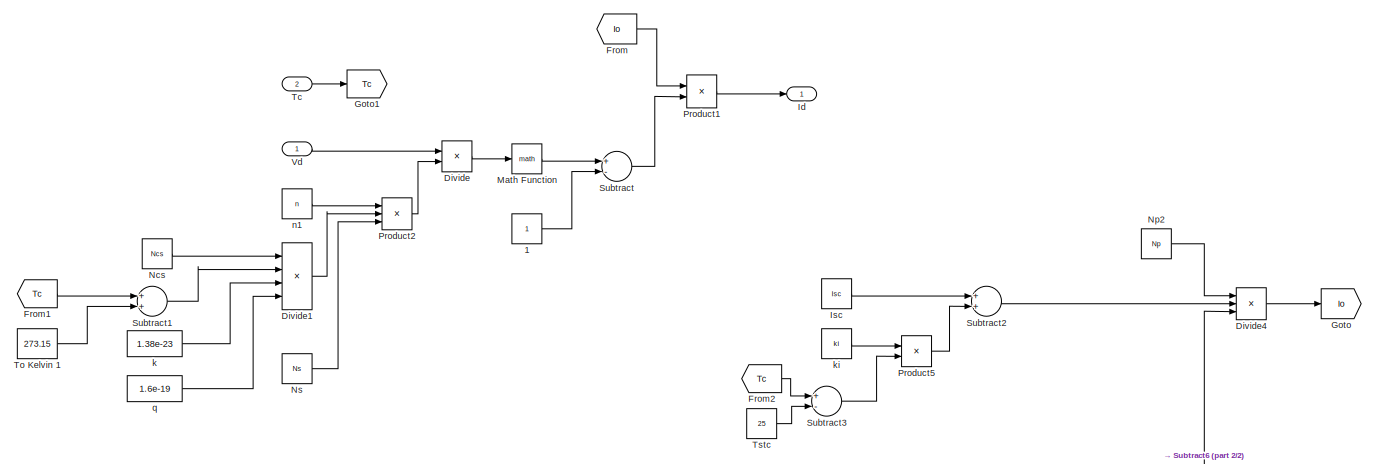
[diagram: PV Generator 1/Irad gen1 - part 1/2, full width, top band]
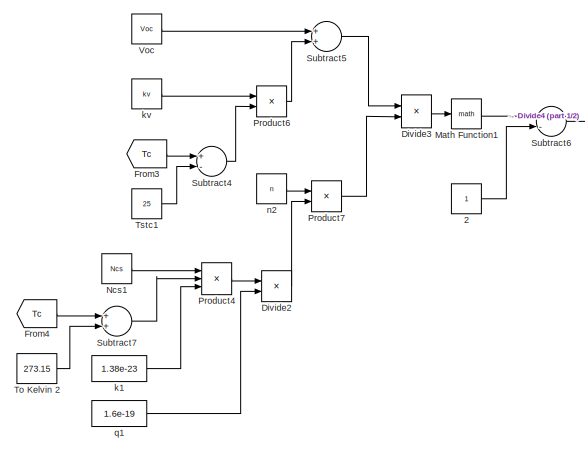
[diagram: PV Generator 1/Irad gen1 - part 2/2, bottom center region]
BLOCK [SubSystem] PV Generator 1/Irad gen1
  Ports = [2, 1]
  RequestExecContextInheritance = off
  ShowPortLabels = SignalName
  Variant = off
BLOCK [Constant] PV Generator 1/Irad gen1/1
BLOCK [Constant] PV Generator 1/Irad gen1/2
BLOCK [Product] PV Generator 1/Irad gen1/Divide
  InputSameDT = off
  Inputs = */
  OutDataTypeStr = Inherit: Inherit via internal rule
  Ports = [2, 1]
  RndMeth = Floor
  SaturateOnIntegerOverflow = off
BLOCK [Product] PV Generator 1/Irad gen1/Divide1
  InputSameDT = off
  Inputs = ***/
  OutDataTypeStr = Inherit: Inherit via internal rule
  Ports = [4, 1]
  RndMeth = Floor
  SaturateOnIntegerOverflow = off
BLOCK [Product] PV Generator 1/Irad gen1/Divide2
  InputSameDT = off
  Inputs = */
  OutDataTypeStr = Inherit: Inherit via internal rule
  Ports = [2, 1]
  RndMeth = Floor
  SaturateOnIntegerOverflow = off
BLOCK [Product] PV Generator 1/Irad gen1/Divide3
  InputSameDT = off
  Inputs = */
  OutDataTypeStr = Inherit: Inherit via internal rule
  Ports = [2, 1]
  RndMeth = Floor
  SaturateOnIntegerOverflow = off
BLOCK [Product] PV Generator 1/Irad gen1/Divide4
  InputSameDT = off
  Inputs = **/
  OutDataTypeStr = Inherit: Inherit via internal rule
  Ports = [3, 1]
  RndMeth = Floor
  SaturateOnIntegerOverflow = off
BLOCK [From] PV Generator 1/Irad gen1/From
  GotoTag = Io
BLOCK [From] PV Generator 1/Irad gen1/From1
  GotoTag = Tc
BLOCK [From] PV Generator 1/Irad gen1/From2
  GotoTag = Tc
BLOCK [From] PV Generator 1/Irad gen1/From3
  GotoTag = Tc
BLOCK [From] PV Generator 1/Irad gen1/From4
  GotoTag = Tc
BLOCK [Goto] PV Generator 1/Irad gen1/Goto
  GotoTag = Io
BLOCK [Goto] PV Generator 1/Irad gen1/Goto1
  GotoTag = Tc
BLOCK [Outport] PV Generator 1/Irad gen1/Id
  IconDisplay = Port number
BLOCK [Constant] PV Generator 1/Irad gen1/Isc
  Value = Isc
BLOCK [Math] PV Generator 1/Irad gen1/Math Function
  Ports = [1, 1]
BLOCK [Math] PV Generator 1/Irad gen1/Math Function1
  Ports = [1, 1]
BLOCK [Constant] PV Generator 1/Irad gen1/Ncs
  Value = Ncs
BLOCK [Constant] PV Generator 1/Irad gen1/Ncs1
  Value = Ncs
BLOCK [Constant] PV Generator 1/Irad gen1/Np2
  Value = Np
BLOCK [Constant] PV Generator 1/Irad gen1/Ns
  Value = Ns
BLOCK [Product] PV Generator 1/Irad gen1/Product1
  InputSameDT = off
  OutDataTypeStr = Inherit: Inherit via internal rule
  Ports = [2, 1]
  RndMeth = Floor
  SaturateOnIntegerOverflow = off
BLOCK [Product] PV Generator 1/Irad gen1/Product2
  InputSameDT = off
  Inputs = 3
  OutDataTypeStr = Inherit: Inherit via internal rule
  Ports = [3, 1]
  RndMeth = Floor
  SaturateOnIntegerOverflow = off
BLOCK [Product] PV Generator 1/Irad gen1/Product4
  InputSameDT = off
  Inputs = 3
  OutDataTypeStr = Inherit: Inherit via internal rule
  Ports = [3, 1]
  RndMeth = Floor
  SaturateOnIntegerOverflow = off
BLOCK [Product] PV Generator 1/Irad gen1/Product5
  InputSameDT = off
  OutDataTypeStr = Inherit: Inherit via internal rule
  Ports = [2, 1]
  RndMeth = Floor
  SaturateOnIntegerOverflow = off
BLOCK [Product] PV Generator 1/Irad gen1/Product6
  InputSameDT = off
  OutDataTypeStr = Inherit: Inherit via internal rule
  Ports = [2, 1]
  RndMeth = Floor
  SaturateOnIntegerOverflow = off
BLOCK [Product] PV Generator 1/Irad gen1/Product7
  InputSameDT = off
  OutDataTypeStr = Inherit: Inherit via internal rule
  Ports = [2, 1]
  RndMeth = Floor
  SaturateOnIntegerOverflow = off
BLOCK [Sum] PV Generator 1/Irad gen1/Subtract
  InputSameDT = off
  Inputs = +-
  OutDataTypeStr = Inherit: Inherit via internal rule
  Ports = [2, 1]
  SaturateOnIntegerOverflow = off
BLOCK [Sum] PV Generator 1/Irad gen1/Subtract1
  InputSameDT = off
  OutDataTypeStr = Inherit: Inherit via internal rule
  Ports = [2, 1]
  SaturateOnIntegerOverflow = off
BLOCK [Sum] PV Generator 1/Irad gen1/Subtract2
  InputSameDT = off
  OutDataTypeStr = Inherit: Inherit via internal rule
  Ports = [2, 1]
  SaturateOnIntegerOverflow = off
BLOCK [Sum] PV Generator 1/Irad gen1/Subtract3
  InputSameDT = off
  Inputs = +-
  OutDataTypeStr = Inherit: Inherit via internal rule
  Ports = [2, 1]
  SaturateOnIntegerOverflow = off
BLOCK [Sum] PV Generator 1/Irad gen1/Subtract4
  InputSameDT = off
  Inputs = +-
  OutDataTypeStr = Inherit: Inherit via internal rule
  Ports = [2, 1]
  SaturateOnIntegerOverflow = off
BLOCK [Sum] PV Generator 1/Irad gen1/Subtract5
  InputSameDT = off
  OutDataTypeStr = Inherit: Inherit via internal rule
  Ports = [2, 1]
  SaturateOnIntegerOverflow = off
BLOCK [Sum] PV Generator 1/Irad gen1/Subtract6
  InputSameDT = off
  Inputs = +-
  OutDataTypeStr = Inherit: Inherit via internal rule
  Ports = [2, 1]
  SaturateOnIntegerOverflow = off
BLOCK [Sum] PV Generator 1/Irad gen1/Subtract7
  InputSameDT = off
  OutDataTypeStr = Inherit: Inherit via internal rule
  Ports = [2, 1]
  SaturateOnIntegerOverflow = off
BLOCK [Inport] PV Generator 1/Irad gen1/Tc
  IconDisplay = Port number
  Port = 2
BLOCK [Constant] PV Generator 1/Irad gen1/To Kelvin 1
  Value = 273.15
BLOCK [Constant] PV Generator 1/Irad gen1/To Kelvin 2
  Value = 273.15
BLOCK [Constant] PV Generator 1/Irad gen1/Tstc
  Value = 25
BLOCK [Constant] PV Generator 1/Irad gen1/Tstc1
  Value = 25
BLOCK [Inport] PV Generator 1/Irad gen1/Vd
  IconDisplay = Port number
BLOCK [Constant] PV Generator 1/Irad gen1/Voc
  Value = Voc
BLOCK [Constant] PV Generator 1/Irad gen1/k
  Value = 1.38e-23
BLOCK [Constant] PV Generator 1/Irad gen1/k1
  Value = 1.38e-23
BLOCK [Constant] PV Generator 1/Irad gen1/ki
  Value = ki
BLOCK [Constant] PV Generator 1/Irad gen1/kv
  Value = kv
BLOCK [Constant] PV Generator 1/Irad gen1/n1
  Value = n
BLOCK [Constant] PV Generator 1/Irad gen1/n2
  Value = n
BLOCK [Constant] PV Generator 1/Irad gen1/q
  Value = 1.6e-19
BLOCK [Constant] PV Generator 1/Irad gen1/q1
  Value = 1.6e-19
BLOCK [Reference] PV Generator 1/Rs  REF=powerlib/Elements/Series RLC Branch
  Ports = [0, 0, 0, 0, 0, 1, 1]
  SourceBlock = powerlib/Elements/Series RLC Branch
  SourceType = Series RLC Branch
BLOCK [Reference] PV Generator 1/Rsh  REF=powerlib/Elements/Series RLC Branch
  Ports = [0, 0, 0, 0, 0, 1, 1]
  SourceBlock = powerlib/Elements/Series RLC Branch
  SourceType = Series RLC Branch
BLOCK [Inport] PV Generator 1/Tc
  IconDisplay = Port number
  Port = 2
BLOCK [Reference] PV Generator 1/Voltage Measurement2  REF=powerlib/Measurements/Voltage Measurement
  Ports = [0, 1, 0, 0, 0, 2]
  SourceBlock = powerlib/Measurements/Voltage Measurement
  SourceType = Voltage Measurement
  UserDataPersistent = on
BLOCK [SubSystem] PV Generator 2
  Ports = [2, 0, 0, 0, 0, 0, 2]
  RequestExecContextInheritance = off
  Variant = off
BLOCK [PMIOPort] PV Generator 2/Conn1
  Port = 1
  Side = Right
BLOCK [PMIOPort] PV Generator 2/Conn2
  Port = 2
  Side = Right
BLOCK [Inport] PV Generator 2/G
  IconDisplay = Port number
BLOCK [Reference] PV Generator 2/Id1  REF=powerlib/Electrical
Sources/Controlled Current Source
  Ports = [1, 0, 0, 0, 0, 1, 1]
  SourceBlock = powerlib/Electrical\nSources/Controlled Current Source
  SourceType = Controlled Current Source
BLOCK [Reference] PV Generator 2/Irad  REF=powerlib/Electrical
Sources/Controlled Current Source
  Ports = [1, 0, 0, 0, 0, 1, 1]
  SourceBlock = powerlib/Electrical\nSources/Controlled Current Source
  SourceType = Controlled Current Source
BLOCK [SubSystem] PV Generator 2/Irad gen
  Ports = [2, 1]
  RequestExecContextInheritance = off
  ShowPortLabels = SignalName
  Variant = off
BLOCK [Constant] PV Generator 2/Irad gen/1
BLOCK [Constant] PV Generator 2/Irad gen/2
  Value = 1000
BLOCK [Constant] PV Generator 2/Irad gen/3
  Value = 25
BLOCK [Sum] PV Generator 2/Irad gen/Add
  InputSameDT = off
  OutDataTypeStr = Inherit: Inherit via internal rule
  Ports = [2, 1]
  SaturateOnIntegerOverflow = off
BLOCK [Sum] PV Generator 2/Irad gen/Add1
  InputSameDT = off
  Inputs = +-
  OutDataTypeStr = Inherit: Inherit via internal rule
  Ports = [2, 1]
  SaturateOnIntegerOverflow = off
BLOCK [Product] PV Generator 2/Irad gen/Divide
  InputSameDT = off
  Inputs = ***/
  OutDataTypeStr = Inherit: Inherit via internal rule
  Ports = [4, 1]
  RndMeth = Floor
  SaturateOnIntegerOverflow = off
BLOCK [Inport] PV Generator 2/Irad gen/G
  IconDisplay = Port number
BLOCK [Outport] PV Generator 2/Irad gen/Irad
  IconDisplay = Port number
BLOCK [Constant] PV Generator 2/Irad gen/Isc
  Value = Isc
BLOCK [Constant] PV Generator 2/Irad gen/Np
  Value = Np
BLOCK [Product] PV Generator 2/Irad gen/Product1
  InputSameDT = off
  OutDataTypeStr = Inherit: Inherit via internal rule
  Ports = [2, 1]
  RndMeth = Floor
  SaturateOnIntegerOverflow = off
BLOCK [Product] PV Generator 2/Irad gen/Product2
  InputSameDT = off
  OutDataTypeStr = Inherit: Inherit via internal rule
  Ports = [2, 1]
  RndMeth = Floor
  SaturateOnIntegerOverflow = off
BLOCK [Inport] PV Generator 2/Irad gen/Tc
  IconDisplay = Port number
  Port = 2
BLOCK [Constant] PV Generator 2/Irad gen/ki
  Value = ki
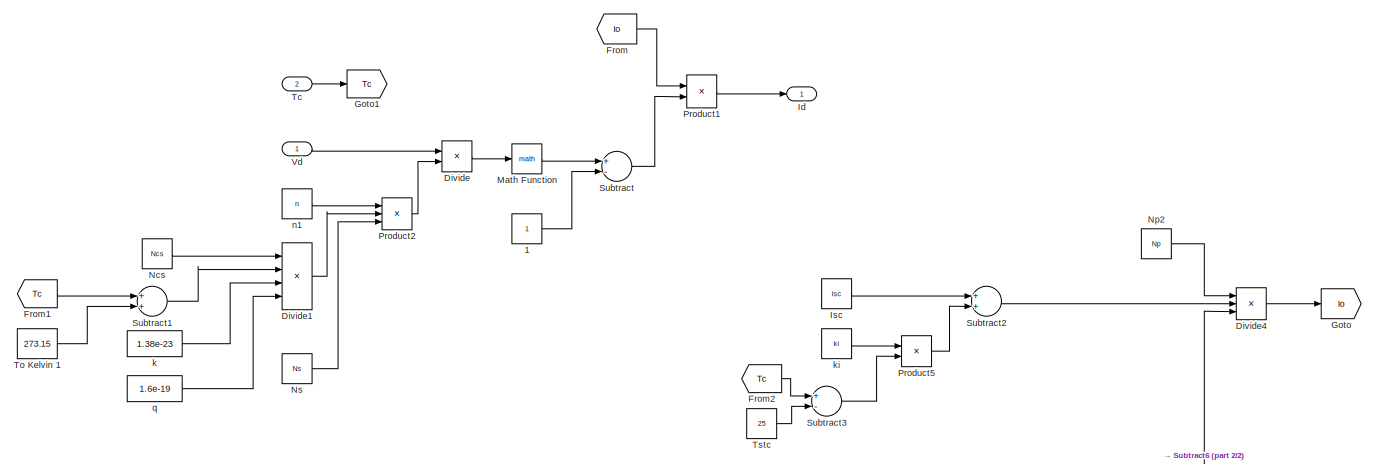
[diagram: PV Generator 2/Irad gen1 - part 1/2, full width, top band]
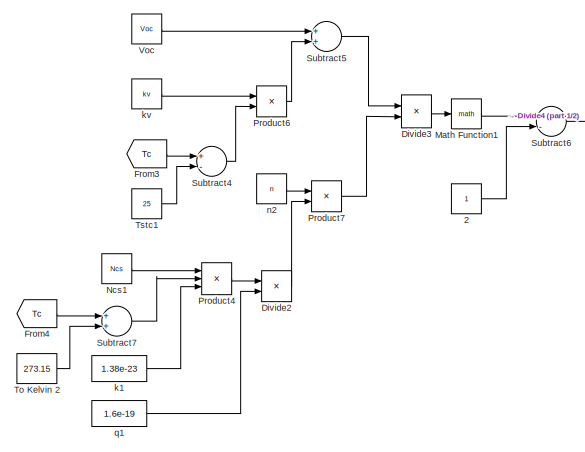
[diagram: PV Generator 2/Irad gen1 - part 2/2, bottom center region]
BLOCK [SubSystem] PV Generator 2/Irad gen1
  Ports = [2, 1]
  RequestExecContextInheritance = off
  ShowPortLabels = SignalName
  Variant = off
BLOCK [Constant] PV Generator 2/Irad gen1/1
BLOCK [Constant] PV Generator 2/Irad gen1/2
BLOCK [Product] PV Generator 2/Irad gen1/Divide
  InputSameDT = off
  Inputs = */
  OutDataTypeStr = Inherit: Inherit via internal rule
  Ports = [2, 1]
  RndMeth = Floor
  SaturateOnIntegerOverflow = off
BLOCK [Product] PV Generator 2/Irad gen1/Divide1
  InputSameDT = off
  Inputs = ***/
  OutDataTypeStr = Inherit: Inherit via internal rule
  Ports = [4, 1]
  RndMeth = Floor
  SaturateOnIntegerOverflow = off
BLOCK [Product] PV Generator 2/Irad gen1/Divide2
  InputSameDT = off
  Inputs = */
  OutDataTypeStr = Inherit: Inherit via internal rule
  Ports = [2, 1]
  RndMeth = Floor
  SaturateOnIntegerOverflow = off
BLOCK [Product] PV Generator 2/Irad gen1/Divide3
  InputSameDT = off
  Inputs = */
  OutDataTypeStr = Inherit: Inherit via internal rule
  Ports = [2, 1]
  RndMeth = Floor
  SaturateOnIntegerOverflow = off
BLOCK [Product] PV Generator 2/Irad gen1/Divide4
  InputSameDT = off
  Inputs = **/
  OutDataTypeStr = Inherit: Inherit via internal rule
  Ports = [3, 1]
  RndMeth = Floor
  SaturateOnIntegerOverflow = off
BLOCK [From] PV Generator 2/Irad gen1/From
  GotoTag = Io
BLOCK [From] PV Generator 2/Irad gen1/From1
  GotoTag = Tc
BLOCK [From] PV Generator 2/Irad gen1/From2
  GotoTag = Tc
BLOCK [From] PV Generator 2/Irad gen1/From3
  GotoTag = Tc
BLOCK [From] PV Generator 2/Irad gen1/From4
  GotoTag = Tc
BLOCK [Goto] PV Generator 2/Irad gen1/Goto
  GotoTag = Io
BLOCK [Goto] PV Generator 2/Irad gen1/Goto1
  GotoTag = Tc
BLOCK [Outport] PV Generator 2/Irad gen1/Id
  IconDisplay = Port number
BLOCK [Constant] PV Generator 2/Irad gen1/Isc
  Value = Isc
BLOCK [Math] PV Generator 2/Irad gen1/Math Function
  Ports = [1, 1]
BLOCK [Math] PV Generator 2/Irad gen1/Math Function1
  Ports = [1, 1]
BLOCK [Constant] PV Generator 2/Irad gen1/Ncs
  Value = Ncs
BLOCK [Constant] PV Generator 2/Irad gen1/Ncs1
  Value = Ncs
BLOCK [Constant] PV Generator 2/Irad gen1/Np2
  Value = Np
BLOCK [Constant] PV Generator 2/Irad gen1/Ns
  Value = Ns
BLOCK [Product] PV Generator 2/Irad gen1/Product1
  InputSameDT = off
  OutDataTypeStr = Inherit: Inherit via internal rule
  Ports = [2, 1]
  RndMeth = Floor
  SaturateOnIntegerOverflow = off
BLOCK [Product] PV Generator 2/Irad gen1/Product2
  InputSameDT = off
  Inputs = 3
  OutDataTypeStr = Inherit: Inherit via internal rule
  Ports = [3, 1]
  RndMeth = Floor
  SaturateOnIntegerOverflow = off
BLOCK [Product] PV Generator 2/Irad gen1/Product4
  InputSameDT = off
  Inputs = 3
  OutDataTypeStr = Inherit: Inherit via internal rule
  Ports = [3, 1]
  RndMeth = Floor
  SaturateOnIntegerOverflow = off
BLOCK [Product] PV Generator 2/Irad gen1/Product5
  InputSameDT = off
  OutDataTypeStr = Inherit: Inherit via internal rule
  Ports = [2, 1]
  RndMeth = Floor
  SaturateOnIntegerOverflow = off
BLOCK [Product] PV Generator 2/Irad gen1/Product6
  InputSameDT = off
  OutDataTypeStr = Inherit: Inherit via internal rule
  Ports = [2, 1]
  RndMeth = Floor
  SaturateOnIntegerOverflow = off
BLOCK [Product] PV Generator 2/Irad gen1/Product7
  InputSameDT = off
  OutDataTypeStr = Inherit: Inherit via internal rule
  Ports = [2, 1]
  RndMeth = Floor
  SaturateOnIntegerOverflow = off
BLOCK [Sum] PV Generator 2/Irad gen1/Subtract
  InputSameDT = off
  Inputs = +-
  OutDataTypeStr = Inherit: Inherit via internal rule
  Ports = [2, 1]
  SaturateOnIntegerOverflow = off
BLOCK [Sum] PV Generator 2/Irad gen1/Subtract1
  InputSameDT = off
  OutDataTypeStr = Inherit: Inherit via internal rule
  Ports = [2, 1]
  SaturateOnIntegerOverflow = off
BLOCK [Sum] PV Generator 2/Irad gen1/Subtract2
  InputSameDT = off
  OutDataTypeStr = Inherit: Inherit via internal rule
  Ports = [2, 1]
  SaturateOnIntegerOverflow = off
BLOCK [Sum] PV Generator 2/Irad gen1/Subtract3
  InputSameDT = off
  Inputs = +-
  OutDataTypeStr = Inherit: Inherit via internal rule
  Ports = [2, 1]
  SaturateOnIntegerOverflow = off
BLOCK [Sum] PV Generator 2/Irad gen1/Subtract4
  InputSameDT = off
  Inputs = +-
  OutDataTypeStr = Inherit: Inherit via internal rule
  Ports = [2, 1]
  SaturateOnIntegerOverflow = off
BLOCK [Sum] PV Generator 2/Irad gen1/Subtract5
  InputSameDT = off
  OutDataTypeStr = Inherit: Inherit via internal rule
  Ports = [2, 1]
  SaturateOnIntegerOverflow = off
BLOCK [Sum] PV Generator 2/Irad gen1/Subtract6
  InputSameDT = off
  Inputs = +-
  OutDataTypeStr = Inherit: Inherit via internal rule
  Ports = [2, 1]
  SaturateOnIntegerOverflow = off
BLOCK [Sum] PV Generator 2/Irad gen1/Subtract7
  InputSameDT = off
  OutDataTypeStr = Inherit: Inherit via internal rule
  Ports = [2, 1]
  SaturateOnIntegerOverflow = off
BLOCK [Inport] PV Generator 2/Irad gen1/Tc
  IconDisplay = Port number
  Port = 2
BLOCK [Constant] PV Generator 2/Irad gen1/To Kelvin 1
  Value = 273.15
BLOCK [Constant] PV Generator 2/Irad gen1/To Kelvin 2
  Value = 273.15
BLOCK [Constant] PV Generator 2/Irad gen1/Tstc
  Value = 25
BLOCK [Constant] PV Generator 2/Irad gen1/Tstc1
  Value = 25
BLOCK [Inport] PV Generator 2/Irad gen1/Vd
  IconDisplay = Port number
BLOCK [Constant] PV Generator 2/Irad gen1/Voc
  Value = Voc
BLOCK [Constant] PV Generator 2/Irad gen1/k
  Value = 1.38e-23
BLOCK [Constant] PV Generator 2/Irad gen1/k1
  Value = 1.38e-23
BLOCK [Constant] PV Generator 2/Irad gen1/ki
  Value = ki
BLOCK [Constant] PV Generator 2/Irad gen1/kv
  Value = kv
BLOCK [Constant] PV Generator 2/Irad gen1/n1
  Value = n
BLOCK [Constant] PV Generator 2/Irad gen1/n2
  Value = n
BLOCK [Constant] PV Generator 2/Irad gen1/q
  Value = 1.6e-19
BLOCK [Constant] PV Generator 2/Irad gen1/q1
  Value = 1.6e-19
BLOCK [Reference] PV Generator 2/Rs  REF=powerlib/Elements/Series RLC Branch
  Ports = [0, 0, 0, 0, 0, 1, 1]
  SourceBlock = powerlib/Elements/Series RLC Branch
  SourceType = Series RLC Branch
BLOCK [Reference] PV Generator 2/Rsh  REF=powerlib/Elements/Series RLC Branch
  Ports = [0, 0, 0, 0, 0, 1, 1]
  SourceBlock = powerlib/Elements/Series RLC Branch
  SourceType = Series RLC Branch
BLOCK [Inport] PV Generator 2/Tc
  IconDisplay = Port number
  Port = 2
BLOCK [Reference] PV Generator 2/Voltage Measurement2  REF=powerlib/Measurements/Voltage Measurement
  Ports = [0, 1, 0, 0, 0, 2]
  SourceBlock = powerlib/Measurements/Voltage Measurement
  SourceType = Voltage Measurement
  UserDataPersistent = on
BLOCK [Product] Pb
  InputSameDT = off
  OutDataTypeStr = Inherit: Inherit via internal rule
  Ports = [2, 1]
  RndMeth = Floor
  SaturateOnIntegerOverflow = off
BLOCK [Product] Pi
  InputSameDT = off
  OutDataTypeStr = Inherit: Inherit via internal rule
  Ports = [2, 1]
  RndMeth = Floor
  SaturateOnIntegerOverflow = off
BLOCK [Product] Ppv
  InputSameDT = off
  OutDataTypeStr = Inherit: Inherit via internal rule
  Ports = [2, 1]
  RndMeth = Floor
  SaturateOnIntegerOverflow = off
BLOCK [Product] Product
  InputSameDT = off
  OutDataTypeStr = Inherit: Inherit via internal rule
  Ports = [2, 1]
  RndMeth = Floor
  SaturateOnIntegerOverflow = off
BLOCK [Reference] RMS3  REF=powerlib_meascontrol/Measurements/RMS
  Ports = [1, 1]
  SourceBlock = powerlib_meascontrol/Measurements/RMS
  SourceType = RMS
BLOCK [SubSystem] SPWM Control
  Ports = []
  RequestExecContextInheritance = off
  Variant = off
BLOCK [Abs] SPWM Control/Abs
  SaturateOnIntegerOverflow = off
BLOCK [Reference] SPWM Control/Compare To Constant  REF=simulink/Logic and Bit
Operations/Compare
To Constant
  Ports = [1, 1]
  SourceBlock = simulink/Logic and Bit\nOperations/Compare\nTo Constant
  SourceType = Compare To Constant
BLOCK [Constant] SPWM Control/Constant
  Value = A
BLOCK [Fcn] SPWM Control/Fcn
  Expr = 0.5*(u(1)+1)
BLOCK [Fcn] SPWM Control/Fcn1
  Expr = u(1)+1
BLOCK [Fcn] SPWM Control/Fcn2
  Expr = u(1)-1
BLOCK [Fcn] SPWM Control/Fcn3
  Expr = u(1)-2
BLOCK [From] SPWM Control/From
  GotoTag = T1
BLOCK [From] SPWM Control/From1
  GotoTag = S
BLOCK [From] SPWM Control/From10
  GotoTag = S
BLOCK [From] SPWM Control/From2
  GotoTag = T2
BLOCK [From] SPWM Control/From3
  GotoTag = S
BLOCK [From] SPWM Control/From4
  GotoTag = S
BLOCK [From] SPWM Control/From5
  GotoTag = T3
BLOCK [From] SPWM Control/From8
  GotoTag = T4
BLOCK [Goto] SPWM Control/Goto
  GotoTag = S
BLOCK [Goto] SPWM Control/Goto1
  GotoTag = G5
  TagVisibility = global
BLOCK [Goto] SPWM Control/Goto11
  GotoTag = T2
BLOCK [Goto] SPWM Control/Goto12
  GotoTag = G8
  TagVisibility = global
BLOCK [Goto] SPWM Control/Goto16
  GotoTag = G1
  TagVisibility = global
BLOCK [Goto] SPWM Control/Goto17
  GotoTag = G3
  TagVisibility = global
BLOCK [Goto] SPWM Control/Goto18
  GotoTag = G2
  TagVisibility = global
BLOCK [Goto] SPWM Control/Goto19
  GotoTag = G4
  TagVisibility = global
BLOCK [Goto] SPWM Control/Goto20
  GotoTag = T3
BLOCK [Goto] SPWM Control/Goto21
  GotoTag = T4
BLOCK [Goto] SPWM Control/Goto4
  GotoTag = G6
  TagVisibility = global
BLOCK [Goto] SPWM Control/Goto8
  GotoTag = T1
BLOCK [Goto] SPWM Control/Goto9
  GotoTag = G7
  TagVisibility = global
BLOCK [Mux] SPWM Control/Mux
  DisplayOption = bar
  Inputs = 5
  Ports = [5, 1]
BLOCK [Product] SPWM Control/Product
  InputSameDT = off
  OutDataTypeStr = Inherit: Inherit via internal rule
  Ports = [2, 1]
  RndMeth = Floor
  SaturateOnIntegerOverflow = off
BLOCK [RelationalOperator] SPWM Control/Relational Operator
  InputSameDT = off
  OutDataTypeStr = boolean
  Ports = [2, 1]
  RndMeth = Simplest
BLOCK [RelationalOperator] SPWM Control/Relational Operator1
  InputSameDT = off
  OutDataTypeStr = boolean
  Ports = [2, 1]
  RndMeth = Simplest
BLOCK [RelationalOperator] SPWM Control/Relational Operator2
  InputSameDT = off
  Operator = <=
  OutDataTypeStr = boolean
  Ports = [2, 1]
  RndMeth = Simplest
BLOCK [RelationalOperator] SPWM Control/Relational Operator3
  InputSameDT = off
  Operator = <=
  OutDataTypeStr = boolean
  Ports = [2, 1]
  RndMeth = Simplest
BLOCK [Scope] SPWM Control/Scope
  NumInputPorts = 1
  Ports = [1]
  ScopeSpecificationString = Simulink.scopes.TimeScopeBlockCfg('CurrentConfiguration', extmgr.ConfigurationSet(extmgr.Configuration('Core','General UI',true),extmgr.Configuration('Core','Source UI',true),extmgr.Configuration('Sources','WiredSimulink',true,'DataLoggingVariableName','ScopeData1'),extmgr.Configuration('Visuals','Time Domain',true,'SerializedDisplays',{struct('MinYLimReal','-2.5','MaxYLimReal','2.5','YLabelReal',...<+1468ch>
BLOCK [Scope] SPWM Control/Scope1
  NumInputPorts = 8
  Ports = [8]
  ScopeSpecificationString = Simulink.scopes.TimeScopeBlockCfg('CurrentConfiguration', extmgr.ConfigurationSet(extmgr.Configuration('Core','General UI',true),extmgr.Configuration('Core','Source UI',true),extmgr.Configuration('Sources','WiredSimulink',true,'DataLoggingVariableName','ScopeData3'),extmgr.Configuration('Visuals','Time Domain',true,'SerializedDisplays',{struct('MinYLimReal','-0.125','MaxYLimReal','1.125','YLabelRe...<+6178ch>
BLOCK [Sin] SPWM Control/Sine Wave
  Frequency = fs*2*pi
  Ports = [0, 1]
  SampleTime = 0
BLOCK [Switch] SPWM Control/Switch
  Criteria = u2 > Threshold
  InputSameDT = off
  SaturateOnIntegerOverflow = off
BLOCK [Switch] SPWM Control/Switch1
  Criteria = u2 > Threshold
  InputSameDT = off
  SaturateOnIntegerOverflow = off
BLOCK [Switch] SPWM Control/Switch2
  Criteria = u2 > Threshold
  InputSameDT = off
  SaturateOnIntegerOverflow = off
BLOCK [Switch] SPWM Control/Switch3
  Criteria = u2 > Threshold
  InputSameDT = off
  SaturateOnIntegerOverflow = off
BLOCK [Reference] SPWM Control/Triangle Generator  REF=powerlib_meascontrol/Pulse & Signal
Generators/Triangle
Generator
  Ports = [0, 1]
  SourceBlock = powerlib_meascontrol/Pulse & Signal\nGenerators/Triangle\nGenerator
  SourceType = Triangle Generator
BLOCK [Scope] Scope
  NumInputPorts = 3
  Ports = [3]
  ScopeSpecificationString = Simulink.scopes.TimeScopeBlockCfg('CurrentConfiguration', extmgr.ConfigurationSet(extmgr.Configuration('Core','General UI',true),extmgr.Configuration('Core','Source UI',true),extmgr.Configuration('Sources','WiredSimulink',true,'DataLoggingVariableName','ScopeData1'),extmgr.Configuration('Visuals','Time Domain',true,'SerializedDisplays',{struct('MinYLimReal','-1656.69082','MaxYLimReal','2183.94163'...<+2767ch>
BLOCK [Scope] Scope2
  NumInputPorts = 2
  Ports = [2]
  ScopeSpecificationString = Simulink.scopes.TimeScopeBlockCfg('CurrentConfiguration', extmgr.ConfigurationSet(extmgr.Configuration('Core','General UI',true),extmgr.Configuration('Core','Source UI',true),extmgr.Configuration('Sources','WiredSimulink',true,'DataLoggingVariableName','ScopeData5'),extmgr.Configuration('Visuals','Time Domain',true,'SerializedDisplays',{struct('MinYLimReal','-1.6427','MaxYLimReal','14.78429','YLab...<+2081ch>
BLOCK [Scope] Scope3
  NumInputPorts = 1
  Ports = [1]
  ScopeSpecificationString = Simulink.scopes.TimeScopeBlockCfg('CurrentConfiguration', extmgr.ConfigurationSet(extmgr.Configuration('Core','General UI',true),extmgr.Configuration('Core','Source UI',true),extmgr.Configuration('Sources','WiredSimulink',true,'DataLoggingVariableName','ScopeData2'),extmgr.Configuration('Visuals','Time Domain',true,'SerializedDisplays',{struct('MinYLimReal','-1255.06047','MaxYLimReal','1256.23595'...<+1472ch>
BLOCK [Reference] Series RLC Branch  REF=powerlib/Elements/Series RLC Branch
  Ports = [0, 0, 0, 0, 0, 1, 1]
  SourceBlock = powerlib/Elements/Series RLC Branch
  SourceType = Series RLC Branch
BLOCK [Reference] Series RLC Branch1  REF=powerlib/Elements/Series RLC Branch
  Ports = [0, 0, 0, 0, 0, 1, 1]
  SourceBlock = powerlib/Elements/Series RLC Branch
  SourceType = Series RLC Branch
BLOCK [Reference] Series RLC Load  REF=powerlib/Elements/Series RLC Load
  AttributesFormatString = \n
  Ports = [0, 0, 0, 0, 0, 1, 1]
  SourceBlock = powerlib/Elements/Series RLC Load
  SourceType = Series RLC Load
BLOCK [Reference] Series RLC Load1  REF=powerlib/Elements/Series RLC Load
  AttributesFormatString = \n
  Ports = [0, 0, 0, 0, 0, 1, 1]
  SourceBlock = powerlib/Elements/Series RLC Load
  SourceType = Series RLC Load
BLOCK [Step] Step
  After = 0
  Before = 1
  SampleTime = 0
  Time = 0.02
BLOCK [Step] Step1
  SampleTime = 0
  Time = 0.02
BLOCK [Step] Step2
  After = 0
  Before = 1
  SampleTime = 0
  Time = 0.02
BLOCK [Step] Step3
  SampleTime = 0
  Time = 0.02
BLOCK [Reference] THD3  REF=powerlib_meascontrol/Measurements/THD
  Ports = [1, 1]
  SourceBlock = powerlib_meascontrol/Measurements/THD
  SourceType = THD
BLOCK [Constant] Tc
  Value = 25
BLOCK [Constant] Tc1
  Value = 25
BLOCK [Goto] Vl
  GotoTag = Vl
  TagVisibility = global
BLOCK [Reference] Voltage Measurement  REF=powerlib/Measurements/Voltage Measurement
  Ports = [0, 1, 0, 0, 0, 2]
  SourceBlock = powerlib/Measurements/Voltage Measurement
  SourceType = Voltage Measurement
  UserDataPersistent = on
BLOCK [Reference] Voltage Measurement1  REF=powerlib/Measurements/Voltage Measurement
  Ports = [0, 1, 0, 0, 0, 2]
  SourceBlock = powerlib/Measurements/Voltage Measurement
  SourceType = Voltage Measurement
  UserDataPersistent = on
BLOCK [Reference] Voltage Measurement3  REF=powerlib/Measurements/Voltage Measurement
  Ports = [0, 1, 0, 0, 0, 2]
  SourceBlock = powerlib/Measurements/Voltage Measurement
  SourceType = Voltage Measurement
  UserDataPersistent = on
BLOCK [Reference] Voltage Measurement4  REF=powerlib/Measurements/Voltage Measurement
  Ports = [0, 1, 0, 0, 0, 2]
  SourceBlock = powerlib/Measurements/Voltage Measurement
  SourceType = Voltage Measurement
  UserDataPersistent = on
BLOCK [Goto] Vpv
  GotoTag = Vpv
  TagVisibility = global
BLOCK [Reference] XY Graph  REF=simulink/Sinks/XY Graph
  Ports = [2]
  SourceBlock = simulink/Sinks/XY Graph
  SourceType = XY scope.
BLOCK [Reference] powergui  REF=powerlib/powergui
  Ports = []
  Priority = 1
  SourceBlock = powerlib/powergui
  SourceType = PSB option menu block
LINE Current Measurement1:1 -> Pb:1
NET Current Measurement2:1 -> Il:1, Scope2:1
NET Current Measurement:1 -> Ipv:1, Product:1, Scope:3
LINE From10:1 -> IGBT3:1
LINE From11:1 -> IGBT6:1
LINE From12:1 -> IGBT:1
LINE From13:1 -> IGBT1:1
LINE From14:1 -> IGBT2:1
LINE From1:1 -> Mean4:1
LINE From2:1 -> Mean1:1
LINE From3:1 -> Mean:1
LINE From4:1 -> MPPT Algorithm:1
LINE From5:1 -> MPPT Algorithm:2
LINE From6:1 -> MPPT Algorithm:3
LINE From7:1 -> IGBT7:1
LINE From8:1 -> IGBT4:1
LINE From9:1 -> IGBT5:1
LINE From:1 -> Mean5:1
LINE G1:1 -> PV Generator 2:1
LINE G:1 -> PV Generator 1:1
LINE MPPT Algorithm/If1:1 -> MPPT Algorithm/Switch Case Action Subsystem1:ifaction
LINE MPPT Algorithm/If2:1 -> MPPT Algorithm/Switch Case Action Subsystem2:ifaction
LINE MPPT Algorithm/If3:1 -> MPPT Algorithm/Switch Case Action Subsystem3:ifaction
LINE MPPT Algorithm/If:1 -> MPPT Algorithm/Switch Case Action Subsystem:ifaction
NET MPPT Algorithm/Ipv:1 -> MPPT Algorithm/Switch Case Action Subsystem1:2, MPPT Algorithm/Switch Case Action Subsystem2:2, MPPT Algorithm/Switch Case Action Subsystem3:2, MPPT Algorithm/Switch Case Action Subsystem:2
LINE MPPT Algorithm/Multiport Switch:1 -> MPPT Algorithm/D:1
NET MPPT Algorithm/Nº:1 -> MPPT Algorithm/If1:1, MPPT Algorithm/If2:1, MPPT Algorithm/If3:1, MPPT Algorithm/If:1, MPPT Algorithm/Multiport Switch:1
LINE MPPT Algorithm/P&O Classic/>0:1 -> MPPT Algorithm/P&O Classic/Product3:2
LINE MPPT Algorithm/P&O Classic/Compare To Zero:1 -> MPPT Algorithm/P&O Classic/Logical Operator:1
LINE MPPT Algorithm/P&O Classic/Data Type Conversion:1 -> MPPT Algorithm/P&O Classic/D:1
LINE MPPT Algorithm/P&O Classic/Delta D1:1 -> MPPT Algorithm/P&O Classic/Subtract3:2
LINE MPPT Algorithm/P&O Classic/Delta D2:1 -> MPPT Algorithm/P&O Classic/Product4:2
LINE MPPT Algorithm/P&O Classic/Delta D:1 -> MPPT Algorithm/P&O Classic/Product3:1
NET MPPT Algorithm/P&O Classic/I:1 -> MPPT Algorithm/P&O Classic/Memory1:1, MPPT Algorithm/P&O Classic/Product1:2
LINE MPPT Algorithm/P&O Classic/Logical Operator:1 -> MPPT Algorithm/P&O Classic/Data Type Conversion:1
LINE MPPT Algorithm/P&O Classic/Memory1:1 -> MPPT Algorithm/P&O Classic/Product2:2
LINE MPPT Algorithm/P&O Classic/Memory2:1 -> MPPT Algorithm/P&O Classic/Subtract2:1
NET MPPT Algorithm/P&O Classic/Memory:1 -> MPPT Algorithm/P&O Classic/Product2:1, MPPT Algorithm/P&O Classic/dV:2
LINE MPPT Algorithm/P&O Classic/Product1:1 -> MPPT Algorithm/P&O Classic/dP:1
LINE MPPT Algorithm/P&O Classic/Product2:1 -> MPPT Algorithm/P&O Classic/dP:2
LINE MPPT Algorithm/P&O Classic/Product3:1 -> MPPT Algorithm/P&O Classic/Subtract2:2
LINE MPPT Algorithm/P&O Classic/Product4:1 -> MPPT Algorithm/P&O Classic/Relational Operator1:2
LINE MPPT Algorithm/P&O Classic/Relational Operator1:1 -> MPPT Algorithm/P&O Classic/Logical Operator:2
NET MPPT Algorithm/P&O Classic/Saturation:1 -> MPPT Algorithm/P&O Classic/Memory2:1, MPPT Algorithm/P&O Classic/Zero-Order Hold:1
LINE MPPT Algorithm/P&O Classic/Subtract2:1 -> MPPT Algorithm/P&O Classic/Saturation:1
LINE MPPT Algorithm/P&O Classic/Subtract3:1 -> MPPT Algorithm/P&O Classic/Product4:1
LINE MPPT Algorithm/P&O Classic/Triangle Generator:1 -> MPPT Algorithm/P&O Classic/Subtract3:1
NET MPPT Algorithm/P&O Classic/V:1 -> MPPT Algorithm/P&O Classic/Memory:1, MPPT Algorithm/P&O Classic/Product1:1, MPPT Algorithm/P&O Classic/dV:1
NET MPPT Algorithm/P&O Classic/Zero-Order Hold:1 -> MPPT Algorithm/P&O Classic/Compare To Zero:1, MPPT Algorithm/P&O Classic/Relational Operator1:1
LINE MPPT Algorithm/P&O Classic/dP:1 -> MPPT Algorithm/P&O Classic/dV*dP:2
LINE MPPT Algorithm/P&O Classic/dV*dP:1 -> MPPT Algorithm/P&O Classic/>0:2
LINE MPPT Algorithm/P&O Classic/dV:1 -> MPPT Algorithm/P&O Classic/dV*dP:1
LINE MPPT Algorithm/P&O Classic/false:1 -> MPPT Algorithm/P&O Classic/>0:3
LINE MPPT Algorithm/P&O Classic/true:1 -> MPPT Algorithm/P&O Classic/>0:1
LINE MPPT Algorithm/P&O Classic:1 -> MPPT Algorithm/Multiport Switch:2
LINE MPPT Algorithm/P&O Referenced (double ref)/Compare To Zero:1 -> MPPT Algorithm/P&O Referenced (double ref)/Logical Operator:1
LINE MPPT Algorithm/P&O Referenced (double ref)/Constant1:1 -> MPPT Algorithm/P&O Referenced (double ref)/Switch:3
LINE MPPT Algorithm/P&O Referenced (double ref)/Constant2:1 -> MPPT Algorithm/P&O Referenced (double ref)/Product4:2
LINE MPPT Algorithm/P&O Referenced (double ref)/Constant3:1 -> MPPT Algorithm/P&O Referenced (double ref)/Switch1:1
LINE MPPT Algorithm/P&O Referenced (double ref)/Constant4:1 -> MPPT Algorithm/P&O Referenced (double ref)/Switch2:3
LINE MPPT Algorithm/P&O Referenced (double ref)/Constant5:1 -> MPPT Algorithm/P&O Referenced (double ref)/Product6:2
LINE MPPT Algorithm/P&O Referenced (double ref)/Constant6:1 -> MPPT Algorithm/P&O Referenced (double ref)/Switch2:1
LINE MPPT Algorithm/P&O Referenced (double ref)/Constant:1 -> MPPT Algorithm/P&O Referenced (double ref)/Switch:1
LINE MPPT Algorithm/P&O Referenced (double ref)/Data Type Conversion:1 -> MPPT Algorithm/P&O Referenced (double ref)/D:1
LINE MPPT Algorithm/P&O Referenced (double ref)/Delta D1:1 -> MPPT Algorithm/P&O Referenced (double ref)/Subtract3:2
LINE MPPT Algorithm/P&O Referenced (double ref)/Delta D2:1 -> MPPT Algorithm/P&O Referenced (double ref)/Product5:2
NET MPPT Algorithm/P&O Referenced (double ref)/I:1 -> MPPT Algorithm/P&O Referenced (double ref)/Memory1:1, MPPT Algorithm/P&O Referenced (double ref)/Product:2
LINE MPPT Algorithm/P&O Referenced (double ref)/Logical Operator:1 -> MPPT Algorithm/P&O Referenced (double ref)/Data Type Conversion:1
LINE MPPT Algorithm/P&O Referenced (double ref)/Memory1:1 -> MPPT Algorithm/P&O Referenced (double ref)/Product1:2
LINE MPPT Algorithm/P&O Referenced (double ref)/Memory2:1 -> MPPT Algorithm/P&O Referenced (double ref)/Subtract2:2
NET MPPT Algorithm/P&O Referenced (double ref)/Memory:1 -> MPPT Algorithm/P&O Referenced (double ref)/Product1:1, MPPT Algorithm/P&O Referenced (double ref)/Subtract:2
NET MPPT Algorithm/P&O Referenced (double ref)/Pref:1 -> MPPT Algorithm/P&O Referenced (double ref)/Product4:1, MPPT Algorithm/P&O Referenced (double ref)/Product6:1
LINE MPPT Algorithm/P&O Referenced (double ref)/Product1:1 -> MPPT Algorithm/P&O Referenced (double ref)/Subtract1:2
LINE MPPT Algorithm/P&O Referenced (double ref)/Product2:1 -> MPPT Algorithm/P&O Referenced (double ref)/Switch:2
LINE MPPT Algorithm/P&O Referenced (double ref)/Product3:1 -> MPPT Algorithm/P&O Referenced (double ref)/Subtract2:1
LINE MPPT Algorithm/P&O Referenced (double ref)/Product4:1 -> MPPT Algorithm/P&O Referenced (double ref)/Relational Operator1:2
LINE MPPT Algorithm/P&O Referenced (double ref)/Product5:1 -> MPPT Algorithm/P&O Referenced (double ref)/Relational Operator2:2
LINE MPPT Algorithm/P&O Referenced (double ref)/Product6:1 -> MPPT Algorithm/P&O Referenced (double ref)/Relational Operator3:2
NET MPPT Algorithm/P&O Referenced (double ref)/Product:1 -> MPPT Algorithm/P&O Referenced (double ref)/Relational Operator1:1, MPPT Algorithm/P&O Referenced (double ref)/Relational Operator3:1, MPPT Algorithm/P&O Referenced (double ref)/Subtract1:1
LINE MPPT Algorithm/P&O Referenced (double ref)/Relational Operator1:1 -> MPPT Algorithm/P&O Referenced (double ref)/Switch1:2
LINE MPPT Algorithm/P&O Referenced (double ref)/Relational Operator2:1 -> MPPT Algorithm/P&O Referenced (double ref)/Logical Operator:2
LINE MPPT Algorithm/P&O Referenced (double ref)/Relational Operator3:1 -> MPPT Algorithm/P&O Referenced (double ref)/Switch2:2
NET MPPT Algorithm/P&O Referenced (double ref)/Saturation:1 -> MPPT Algorithm/P&O Referenced (double ref)/Memory2:1, MPPT Algorithm/P&O Referenced (double ref)/Zero-Order Hold:1
LINE MPPT Algorithm/P&O Referenced (double ref)/Subtract1:1 -> MPPT Algorithm/P&O Referenced (double ref)/Product2:2
LINE MPPT Algorithm/P&O Referenced (double ref)/Subtract2:1 -> MPPT Algorithm/P&O Referenced (double ref)/Saturation:1
LINE MPPT Algorithm/P&O Referenced (double ref)/Subtract3:1 -> MPPT Algorithm/P&O Referenced (double ref)/Product5:1
LINE MPPT Algorithm/P&O Referenced (double ref)/Subtract:1 -> MPPT Algorithm/P&O Referenced (double ref)/Product2:1
LINE MPPT Algorithm/P&O Referenced (double ref)/Switch1:1 -> MPPT Algorithm/P&O Referenced (double ref)/Product3:2
LINE MPPT Algorithm/P&O Referenced (double ref)/Switch2:1 -> MPPT Algorithm/P&O Referenced (double ref)/Switch1:3
LINE MPPT Algorithm/P&O Referenced (double ref)/Switch:1 -> MPPT Algorithm/P&O Referenced (double ref)/Product3:1
LINE MPPT Algorithm/P&O Referenced (double ref)/Triangle Generator1:1 -> MPPT Algorithm/P&O Referenced (double ref)/Subtract3:1
NET MPPT Algorithm/P&O Referenced (double ref)/V:1 -> MPPT Algorithm/P&O Referenced (double ref)/Memory:1, MPPT Algorithm/P&O Referenced (double ref)/Product:1, MPPT Algorithm/P&O Referenced (double ref)/Subtract:1
NET MPPT Algorithm/P&O Referenced (double ref)/Zero-Order Hold:1 -> MPPT Algorithm/P&O Referenced (double ref)/Compare To Zero:1, MPPT Algorithm/P&O Referenced (double ref)/Relational Operator2:1
LINE MPPT Algorithm/P&O Referenced (double ref):1 -> MPPT Algorithm/Multiport Switch:5
LINE MPPT Algorithm/P&O Referenced (single ref)/Compare To Zero:1 -> MPPT Algorithm/P&O Referenced (single ref)/Logical Operator:1
LINE MPPT Algorithm/P&O Referenced (single ref)/Constant1:1 -> MPPT Algorithm/P&O Referenced (single ref)/Switch:3
LINE MPPT Algorithm/P&O Referenced (single ref)/Constant2:1 -> MPPT Algorithm/P&O Referenced (single ref)/Product4:2
LINE MPPT Algorithm/P&O Referenced (single ref)/Constant3:1 -> MPPT Algorithm/P&O Referenced (single ref)/Switch1:1
LINE MPPT Algorithm/P&O Referenced (single ref)/Constant4:1 -> MPPT Algorithm/P&O Referenced (single ref)/Switch1:3
LINE MPPT Algorithm/P&O Referenced (single ref)/Constant:1 -> MPPT Algorithm/P&O Referenced (single ref)/Switch:1
LINE MPPT Algorithm/P&O Referenced (single ref)/Data Type Conversion:1 -> MPPT Algorithm/P&O Referenced (single ref)/D:1
LINE MPPT Algorithm/P&O Referenced (single ref)/Delta D1:1 -> MPPT Algorithm/P&O Referenced (single ref)/Subtract3:2
LINE MPPT Algorithm/P&O Referenced (single ref)/Delta D2:1 -> MPPT Algorithm/P&O Referenced (single ref)/Product5:2
NET MPPT Algorithm/P&O Referenced (single ref)/I:1 -> MPPT Algorithm/P&O Referenced (single ref)/Memory1:1, MPPT Algorithm/P&O Referenced (single ref)/Product:2
LINE MPPT Algorithm/P&O Referenced (single ref)/Logical Operator:1 -> MPPT Algorithm/P&O Referenced (single ref)/Data Type Conversion:1
LINE MPPT Algorithm/P&O Referenced (single ref)/Memory1:1 -> MPPT Algorithm/P&O Referenced (single ref)/Product1:2
LINE MPPT Algorithm/P&O Referenced (single ref)/Memory2:1 -> MPPT Algorithm/P&O Referenced (single ref)/Subtract2:2
NET MPPT Algorithm/P&O Referenced (single ref)/Memory:1 -> MPPT Algorithm/P&O Referenced (single ref)/Product1:1, MPPT Algorithm/P&O Referenced (single ref)/Subtract:2
LINE MPPT Algorithm/P&O Referenced (single ref)/Pref:1 -> MPPT Algorithm/P&O Referenced (single ref)/Product4:1
LINE MPPT Algorithm/P&O Referenced (single ref)/Product1:1 -> MPPT Algorithm/P&O Referenced (single ref)/Subtract1:2
LINE MPPT Algorithm/P&O Referenced (single ref)/Product2:1 -> MPPT Algorithm/P&O Referenced (single ref)/Switch:2
LINE MPPT Algorithm/P&O Referenced (single ref)/Product3:1 -> MPPT Algorithm/P&O Referenced (single ref)/Subtract2:1
LINE MPPT Algorithm/P&O Referenced (single ref)/Product4:1 -> MPPT Algorithm/P&O Referenced (single ref)/Relational Operator1:2
LINE MPPT Algorithm/P&O Referenced (single ref)/Product5:1 -> MPPT Algorithm/P&O Referenced (single ref)/Relational Operator2:2
NET MPPT Algorithm/P&O Referenced (single ref)/Product:1 -> MPPT Algorithm/P&O Referenced (single ref)/Relational Operator1:1, MPPT Algorithm/P&O Referenced (single ref)/Subtract1:1
LINE MPPT Algorithm/P&O Referenced (single ref)/Relational Operator1:1 -> MPPT Algorithm/P&O Referenced (single ref)/Switch1:2
LINE MPPT Algorithm/P&O Referenced (single ref)/Relational Operator2:1 -> MPPT Algorithm/P&O Referenced (single ref)/Logical Operator:2
NET MPPT Algorithm/P&O Referenced (single ref)/Saturation:1 -> MPPT Algorithm/P&O Referenced (single ref)/Memory2:1, MPPT Algorithm/P&O Referenced (single ref)/Zero-Order Hold:1
LINE MPPT Algorithm/P&O Referenced (single ref)/Subtract1:1 -> MPPT Algorithm/P&O Referenced (single ref)/Product2:2
LINE MPPT Algorithm/P&O Referenced (single ref)/Subtract2:1 -> MPPT Algorithm/P&O Referenced (single ref)/Saturation:1
LINE MPPT Algorithm/P&O Referenced (single ref)/Subtract3:1 -> MPPT Algorithm/P&O Referenced (single ref)/Product5:1
LINE MPPT Algorithm/P&O Referenced (single ref)/Subtract:1 -> MPPT Algorithm/P&O Referenced (single ref)/Product2:1
LINE MPPT Algorithm/P&O Referenced (single ref)/Switch1:1 -> MPPT Algorithm/P&O Referenced (single ref)/Product3:2
LINE MPPT Algorithm/P&O Referenced (single ref)/Switch:1 -> MPPT Algorithm/P&O Referenced (single ref)/Product3:1
LINE MPPT Algorithm/P&O Referenced (single ref)/Triangle Generator1:1 -> MPPT Algorithm/P&O Referenced (single ref)/Subtract3:1
NET MPPT Algorithm/P&O Referenced (single ref)/V:1 -> MPPT Algorithm/P&O Referenced (single ref)/Memory:1, MPPT Algorithm/P&O Referenced (single ref)/Product:1, MPPT Algorithm/P&O Referenced (single ref)/Subtract:1
NET MPPT Algorithm/P&O Referenced (single ref)/Zero-Order Hold:1 -> MPPT Algorithm/P&O Referenced (single ref)/Compare To Zero:1, MPPT Algorithm/P&O Referenced (single ref)/Relational Operator2:1
LINE MPPT Algorithm/P&O Referenced (single ref):1 -> MPPT Algorithm/Multiport Switch:4
LINE MPPT Algorithm/P&O dP//dV/Compare To Constant1:1 -> MPPT Algorithm/P&O dP//dV/Switch2:2
LINE MPPT Algorithm/P&O dP//dV/Compare To Constant:1 -> MPPT Algorithm/P&O dP//dV/Switch1:2
LINE MPPT Algorithm/P&O dP//dV/Compare To Zero:1 -> MPPT Algorithm/P&O dP//dV/Logical Operator:1
LINE MPPT Algorithm/P&O dP//dV/Constant1:1 -> MPPT Algorithm/P&O dP//dV/Switch:3
LINE MPPT Algorithm/P&O dP//dV/Constant2:1 -> MPPT Algorithm/P&O dP//dV/Switch2:1
LINE MPPT Algorithm/P&O dP//dV/Constant:1 -> MPPT Algorithm/P&O dP//dV/Switch:1
LINE MPPT Algorithm/P&O dP//dV/Data Type Conversion:1 -> MPPT Algorithm/P&O dP//dV/D:1
LINE MPPT Algorithm/P&O dP//dV/Delta D1:1 -> MPPT Algorithm/P&O dP//dV/Subtract3:2
LINE MPPT Algorithm/P&O dP//dV/Delta D2:1 -> MPPT Algorithm/P&O dP//dV/Product4:2
LINE MPPT Algorithm/P&O dP//dV/Delta D:1 -> MPPT Algorithm/P&O dP//dV/Product2:2
NET MPPT Algorithm/P&O dP//dV/I:1 -> MPPT Algorithm/P&O dP//dV/Memory1:1, MPPT Algorithm/P&O dP//dV/Product:2
LINE MPPT Algorithm/P&O dP//dV/Logical Operator:1 -> MPPT Algorithm/P&O dP//dV/Data Type Conversion:1
LINE MPPT Algorithm/P&O dP//dV/Memory1:1 -> MPPT Algorithm/P&O dP//dV/Product1:2
LINE MPPT Algorithm/P&O dP//dV/Memory2:1 -> MPPT Algorithm/P&O dP//dV/Subtract2:1
NET MPPT Algorithm/P&O dP//dV/Memory:1 -> MPPT Algorithm/P&O dP//dV/Product1:1, MPPT Algorithm/P&O dP//dV/dV:2
LINE MPPT Algorithm/P&O dP//dV/Product1:1 -> MPPT Algorithm/P&O dP//dV/dP:2
LINE MPPT Algorithm/P&O dP//dV/Product2:1 -> MPPT Algorithm/P&O dP//dV/Product3:2
LINE MPPT Algorithm/P&O dP//dV/Product3:1 -> MPPT Algorithm/P&O dP//dV/Subtract2:2
LINE MPPT Algorithm/P&O dP//dV/Product4:1 -> MPPT Algorithm/P&O dP//dV/Relational Operator:2
LINE MPPT Algorithm/P&O dP//dV/Product:1 -> MPPT Algorithm/P&O dP//dV/dP:1
LINE MPPT Algorithm/P&O dP//dV/Relational Operator:1 -> MPPT Algorithm/P&O dP//dV/Logical Operator:2
LINE MPPT Algorithm/P&O dP//dV/Saturation1:1 -> MPPT Algorithm/P&O dP//dV/Product2:1
LINE MPPT Algorithm/P&O dP//dV/Saturation:1 -> MPPT Algorithm/P&O dP//dV/Zero-Order Hold:1
LINE MPPT Algorithm/P&O dP//dV/Subtract2:1 -> MPPT Algorithm/P&O dP//dV/Saturation:1
LINE MPPT Algorithm/P&O dP//dV/Subtract3:1 -> MPPT Algorithm/P&O dP//dV/Product4:1
LINE MPPT Algorithm/P&O dP//dV/Switch1:1 -> MPPT Algorithm/P&O dP//dV/dP//dV:1
LINE MPPT Algorithm/P&O dP//dV/Switch2:1 -> MPPT Algorithm/P&O dP//dV/Switch1:1
LINE MPPT Algorithm/P&O dP//dV/Switch:1 -> MPPT Algorithm/P&O dP//dV/Product3:1
LINE MPPT Algorithm/P&O dP//dV/Triangle Generator1:1 -> MPPT Algorithm/P&O dP//dV/Subtract3:1
NET MPPT Algorithm/P&O dP//dV/V:1 -> MPPT Algorithm/P&O dP//dV/Memory:1, MPPT Algorithm/P&O dP//dV/Product:1, MPPT Algorithm/P&O dP//dV/dV:1
NET MPPT Algorithm/P&O dP//dV/Zero-Order Hold:1 -> MPPT Algorithm/P&O dP//dV/Compare To Zero:1, MPPT Algorithm/P&O dP//dV/Memory2:1, MPPT Algorithm/P&O dP//dV/Relational Operator:1
NET MPPT Algorithm/P&O dP//dV/dP//dV:1 -> MPPT Algorithm/P&O dP//dV/Saturation1:1, MPPT Algorithm/P&O dP//dV/Switch:2
NET MPPT Algorithm/P&O dP//dV/dP:1 -> MPPT Algorithm/P&O dP//dV/Compare To Constant1:1, MPPT Algorithm/P&O dP//dV/Switch2:3, MPPT Algorithm/P&O dP//dV/dP//dV:2
NET MPPT Algorithm/P&O dP//dV/dV:1 -> MPPT Algorithm/P&O dP//dV/Compare To Constant:1, MPPT Algorithm/P&O dP//dV/Switch1:3
LINE MPPT Algorithm/P&O dP//dV:1 -> MPPT Algorithm/Multiport Switch:3
NET MPPT Algorithm/Pref:1 -> MPPT Algorithm/P&O Referenced (double ref):3, MPPT Algorithm/P&O Referenced (single ref):3
LINE MPPT Algorithm/Switch Case Action Subsystem/In1:1 -> MPPT Algorithm/Switch Case Action Subsystem/Out1:1
LINE MPPT Algorithm/Switch Case Action Subsystem/In2:1 -> MPPT Algorithm/Switch Case Action Subsystem/Out2:1
LINE MPPT Algorithm/Switch Case Action Subsystem1/In1:1 -> MPPT Algorithm/Switch Case Action Subsystem1/Out1:1
LINE MPPT Algorithm/Switch Case Action Subsystem1/In2:1 -> MPPT Algorithm/Switch Case Action Subsystem1/Out2:1
LINE MPPT Algorithm/Switch Case Action Subsystem1:1 -> MPPT Algorithm/P&O dP//dV:1
LINE MPPT Algorithm/Switch Case Action Subsystem1:2 -> MPPT Algorithm/P&O dP//dV:2
LINE MPPT Algorithm/Switch Case Action Subsystem2/In1:1 -> MPPT Algorithm/Switch Case Action Subsystem2/Out1:1
LINE MPPT Algorithm/Switch Case Action Subsystem2/In2:1 -> MPPT Algorithm/Switch Case Action Subsystem2/Out2:1
LINE MPPT Algorithm/Switch Case Action Subsystem2:1 -> MPPT Algorithm/P&O Referenced (single ref):1
LINE MPPT Algorithm/Switch Case Action Subsystem2:2 -> MPPT Algorithm/P&O Referenced (single ref):2
LINE MPPT Algorithm/Switch Case Action Subsystem3/In1:1 -> MPPT Algorithm/Switch Case Action Subsystem3/Out1:1
LINE MPPT Algorithm/Switch Case Action Subsystem3/In2:1 -> MPPT Algorithm/Switch Case Action Subsystem3/Out2:1
LINE MPPT Algorithm/Switch Case Action Subsystem3:1 -> MPPT Algorithm/P&O Referenced (double ref):1
LINE MPPT Algorithm/Switch Case Action Subsystem3:2 -> MPPT Algorithm/P&O Referenced (double ref):2
LINE MPPT Algorithm/Switch Case Action Subsystem:1 -> MPPT Algorithm/P&O Classic:1
LINE MPPT Algorithm/Switch Case Action Subsystem:2 -> MPPT Algorithm/P&O Classic:2
NET MPPT Algorithm/Vpv:1 -> MPPT Algorithm/Switch Case Action Subsystem1:1, MPPT Algorithm/Switch Case Action Subsystem2:1, MPPT Algorithm/Switch Case Action Subsystem3:1, MPPT Algorithm/Switch Case Action Subsystem:1
LINE MPPT Algorithm:1 -> Goto:1
LINE MPPT Boost/From7:1 -> MPPT Boost/Mosfet:1
LINE MPPT Boost1/From7:1 -> MPPT Boost1/Mosfet:1
NET Mean1:1 -> Display4:1, Ppv:2
LINE Mean3:1 -> Display7:1
NET Mean4:1 -> Display1:1, Pi:1
NET Mean5:1 -> Display2:1, Pi:2
NET Mean:1 -> Display3:1, Ppv:1
LINE PV Generator 1/Add2:1 -> PV Generator 1/Divide:6
LINE PV Generator 1/Add3:1 -> PV Generator 1/Divide1:3
LINE PV Generator 1/Constant10:1 -> PV Generator 1/Add3:2
LINE PV Generator 1/Constant11:1 -> PV Generator 1/Divide1:1
LINE PV Generator 1/Constant12:1 -> PV Generator 1/Divide1:2
LINE PV Generator 1/Constant13:1 -> PV Generator 1/Divide:2
LINE PV Generator 1/Constant14:1 -> PV Generator 1/Divide:1
LINE PV Generator 1/Constant15:1 -> PV Generator 1/Add2:1
LINE PV Generator 1/Constant6:1 -> PV Generator 1/Divide:3
LINE PV Generator 1/Constant7:1 -> PV Generator 1/Divide:4
LINE PV Generator 1/Constant8:1 -> PV Generator 1/Divide:5
LINE PV Generator 1/Constant9:1 -> PV Generator 1/Add3:1
LINE PV Generator 1/Divide1:1 -> PV Generator 1/Add2:2
LINE PV Generator 1/Divide:1 -> PV Generator 1/Goto2:1
LINE PV Generator 1/G:1 -> PV Generator 1/Irad gen:1
LINE PV Generator 1/Irad gen/1:1 -> PV Generator 1/Irad gen/Add:1
LINE PV Generator 1/Irad gen/2:1 -> PV Generator 1/Irad gen/Divide:4
LINE PV Generator 1/Irad gen/3:1 -> PV Generator 1/Irad gen/Add1:2
LINE PV Generator 1/Irad gen/Add1:1 -> PV Generator 1/Irad gen/Product2:2
LINE PV Generator 1/Irad gen/Add:1 -> PV Generator 1/Irad gen/Product1:2
LINE PV Generator 1/Irad gen/Divide:1 -> PV Generator 1/Irad gen/Product1:1
LINE PV Generator 1/Irad gen/G:1 -> PV Generator 1/Irad gen/Divide:3
LINE PV Generator 1/Irad gen/Isc:1 -> PV Generator 1/Irad gen/Divide:2
LINE PV Generator 1/Irad gen/Np:1 -> PV Generator 1/Irad gen/Divide:1
LINE PV Generator 1/Irad gen/Product1:1 -> PV Generator 1/Irad gen/Irad:1
LINE PV Generator 1/Irad gen/Product2:1 -> PV Generator 1/Irad gen/Add:2
LINE PV Generator 1/Irad gen/Tc:1 -> PV Generator 1/Irad gen/Add1:1
LINE PV Generator 1/Irad gen/ki:1 -> PV Generator 1/Irad gen/Product2:1
LINE PV Generator 1/Irad gen1/1:1 -> PV Generator 1/Irad gen1/Subtract:2
LINE PV Generator 1/Irad gen1/2:1 -> PV Generator 1/Irad gen1/Subtract6:2
LINE PV Generator 1/Irad gen1/Divide1:1 -> PV Generator 1/Irad gen1/Product2:2
LINE PV Generator 1/Irad gen1/Divide2:1 -> PV Generator 1/Irad gen1/Product7:2
LINE PV Generator 1/Irad gen1/Divide3:1 -> PV Generator 1/Irad gen1/Math Function1:1
LINE PV Generator 1/Irad gen1/Divide4:1 -> PV Generator 1/Irad gen1/Goto:1
LINE PV Generator 1/Irad gen1/Divide:1 -> PV Generator 1/Irad gen1/Math Function:1
LINE PV Generator 1/Irad gen1/From1:1 -> PV Generator 1/Irad gen1/Subtract1:1
LINE PV Generator 1/Irad gen1/From2:1 -> PV Generator 1/Irad gen1/Subtract3:1
LINE PV Generator 1/Irad gen1/From3:1 -> PV Generator 1/Irad gen1/Subtract4:1
LINE PV Generator 1/Irad gen1/From4:1 -> PV Generator 1/Irad gen1/Subtract7:1
LINE PV Generator 1/Irad gen1/From:1 -> PV Generator 1/Irad gen1/Product1:1
LINE PV Generator 1/Irad gen1/Isc:1 -> PV Generator 1/Irad gen1/Subtract2:1
LINE PV Generator 1/Irad gen1/Math Function1:1 -> PV Generator 1/Irad gen1/Subtract6:1
LINE PV Generator 1/Irad gen1/Math Function:1 -> PV Generator 1/Irad gen1/Subtract:1
LINE PV Generator 1/Irad gen1/Ncs1:1 -> PV Generator 1/Irad gen1/Product4:1
LINE PV Generator 1/Irad gen1/Ncs:1 -> PV Generator 1/Irad gen1/Divide1:1
LINE PV Generator 1/Irad gen1/Np2:1 -> PV Generator 1/Irad gen1/Divide4:1
LINE PV Generator 1/Irad gen1/Ns:1 -> PV Generator 1/Irad gen1/Product2:3
LINE PV Generator 1/Irad gen1/Product1:1 -> PV Generator 1/Irad gen1/Id:1
LINE PV Generator 1/Irad gen1/Product2:1 -> PV Generator 1/Irad gen1/Divide:2
LINE PV Generator 1/Irad gen1/Product4:1 -> PV Generator 1/Irad gen1/Divide2:1
LINE PV Generator 1/Irad gen1/Product5:1 -> PV Generator 1/Irad gen1/Subtract2:2
LINE PV Generator 1/Irad gen1/Product6:1 -> PV Generator 1/Irad gen1/Subtract5:2
LINE PV Generator 1/Irad gen1/Product7:1 -> PV Generator 1/Irad gen1/Divide3:2
LINE PV Generator 1/Irad gen1/Subtract1:1 -> PV Generator 1/Irad gen1/Divide1:2
LINE PV Generator 1/Irad gen1/Subtract2:1 -> PV Generator 1/Irad gen1/Divide4:2
LINE PV Generator 1/Irad gen1/Subtract3:1 -> PV Generator 1/Irad gen1/Product5:2
LINE PV Generator 1/Irad gen1/Subtract4:1 -> PV Generator 1/Irad gen1/Product6:2
LINE PV Generator 1/Irad gen1/Subtract5:1 -> PV Generator 1/Irad gen1/Divide3:1
LINE PV Generator 1/Irad gen1/Subtract6:1 -> PV Generator 1/Irad gen1/Divide4:3
LINE PV Generator 1/Irad gen1/Subtract7:1 -> PV Generator 1/Irad gen1/Product4:2
LINE PV Generator 1/Irad gen1/Subtract:1 -> PV Generator 1/Irad gen1/Product1:2
LINE PV Generator 1/Irad gen1/Tc:1 -> PV Generator 1/Irad gen1/Goto1:1
LINE PV Generator 1/Irad gen1/To Kelvin 1:1 -> PV Generator 1/Irad gen1/Subtract1:2
LINE PV Generator 1/Irad gen1/To Kelvin 2:1 -> PV Generator 1/Irad gen1/Subtract7:2
LINE PV Generator 1/Irad gen1/Tstc1:1 -> PV Generator 1/Irad gen1/Subtract4:2
LINE PV Generator 1/Irad gen1/Tstc:1 -> PV Generator 1/Irad gen1/Subtract3:2
LINE PV Generator 1/Irad gen1/Vd:1 -> PV Generator 1/Irad gen1/Divide:1
LINE PV Generator 1/Irad gen1/Voc:1 -> PV Generator 1/Irad gen1/Subtract5:1
LINE PV Generator 1/Irad gen1/k1:1 -> PV Generator 1/Irad gen1/Product4:3
LINE PV Generator 1/Irad gen1/k:1 -> PV Generator 1/Irad gen1/Divide1:3
LINE PV Generator 1/Irad gen1/ki:1 -> PV Generator 1/Irad gen1/Product5:1
LINE PV Generator 1/Irad gen1/kv:1 -> PV Generator 1/Irad gen1/Product6:1
LINE PV Generator 1/Irad gen1/n1:1 -> PV Generator 1/Irad gen1/Product2:1
LINE PV Generator 1/Irad gen1/n2:1 -> PV Generator 1/Irad gen1/Product7:1
LINE PV Generator 1/Irad gen1/q1:1 -> PV Generator 1/Irad gen1/Divide2:2
LINE PV Generator 1/Irad gen1/q:1 -> PV Generator 1/Irad gen1/Divide1:4
LINE PV Generator 1/Irad gen1:1 -> PV Generator 1/Id1:1
LINE PV Generator 1/Irad gen:1 -> PV Generator 1/Irad:1
NET PV Generator 1/Tc:1 -> PV Generator 1/Irad gen1:2, PV Generator 1/Irad gen:2
LINE PV Generator 1/Voltage Measurement2:1 -> PV Generator 1/Irad gen1:1
LINE PV Generator 2/G:1 -> PV Generator 2/Irad gen:1
LINE PV Generator 2/Irad gen/1:1 -> PV Generator 2/Irad gen/Add:1
LINE PV Generator 2/Irad gen/2:1 -> PV Generator 2/Irad gen/Divide:4
LINE PV Generator 2/Irad gen/3:1 -> PV Generator 2/Irad gen/Add1:2
LINE PV Generator 2/Irad gen/Add1:1 -> PV Generator 2/Irad gen/Product2:2
LINE PV Generator 2/Irad gen/Add:1 -> PV Generator 2/Irad gen/Product1:2
LINE PV Generator 2/Irad gen/Divide:1 -> PV Generator 2/Irad gen/Product1:1
LINE PV Generator 2/Irad gen/G:1 -> PV Generator 2/Irad gen/Divide:3
LINE PV Generator 2/Irad gen/Isc:1 -> PV Generator 2/Irad gen/Divide:2
LINE PV Generator 2/Irad gen/Np:1 -> PV Generator 2/Irad gen/Divide:1
LINE PV Generator 2/Irad gen/Product1:1 -> PV Generator 2/Irad gen/Irad:1
LINE PV Generator 2/Irad gen/Product2:1 -> PV Generator 2/Irad gen/Add:2
LINE PV Generator 2/Irad gen/Tc:1 -> PV Generator 2/Irad gen/Add1:1
LINE PV Generator 2/Irad gen/ki:1 -> PV Generator 2/Irad gen/Product2:1
LINE PV Generator 2/Irad gen1/1:1 -> PV Generator 2/Irad gen1/Subtract:2
LINE PV Generator 2/Irad gen1/2:1 -> PV Generator 2/Irad gen1/Subtract6:2
LINE PV Generator 2/Irad gen1/Divide1:1 -> PV Generator 2/Irad gen1/Product2:2
LINE PV Generator 2/Irad gen1/Divide2:1 -> PV Generator 2/Irad gen1/Product7:2
LINE PV Generator 2/Irad gen1/Divide3:1 -> PV Generator 2/Irad gen1/Math Function1:1
LINE PV Generator 2/Irad gen1/Divide4:1 -> PV Generator 2/Irad gen1/Goto:1
LINE PV Generator 2/Irad gen1/Divide:1 -> PV Generator 2/Irad gen1/Math Function:1
LINE PV Generator 2/Irad gen1/From1:1 -> PV Generator 2/Irad gen1/Subtract1:1
LINE PV Generator 2/Irad gen1/From2:1 -> PV Generator 2/Irad gen1/Subtract3:1
LINE PV Generator 2/Irad gen1/From3:1 -> PV Generator 2/Irad gen1/Subtract4:1
LINE PV Generator 2/Irad gen1/From4:1 -> PV Generator 2/Irad gen1/Subtract7:1
LINE PV Generator 2/Irad gen1/From:1 -> PV Generator 2/Irad gen1/Product1:1
LINE PV Generator 2/Irad gen1/Isc:1 -> PV Generator 2/Irad gen1/Subtract2:1
LINE PV Generator 2/Irad gen1/Math Function1:1 -> PV Generator 2/Irad gen1/Subtract6:1
LINE PV Generator 2/Irad gen1/Math Function:1 -> PV Generator 2/Irad gen1/Subtract:1
LINE PV Generator 2/Irad gen1/Ncs1:1 -> PV Generator 2/Irad gen1/Product4:1
LINE PV Generator 2/Irad gen1/Ncs:1 -> PV Generator 2/Irad gen1/Divide1:1
LINE PV Generator 2/Irad gen1/Np2:1 -> PV Generator 2/Irad gen1/Divide4:1
LINE PV Generator 2/Irad gen1/Ns:1 -> PV Generator 2/Irad gen1/Product2:3
LINE PV Generator 2/Irad gen1/Product1:1 -> PV Generator 2/Irad gen1/Id:1
LINE PV Generator 2/Irad gen1/Product2:1 -> PV Generator 2/Irad gen1/Divide:2
LINE PV Generator 2/Irad gen1/Product4:1 -> PV Generator 2/Irad gen1/Divide2:1
LINE PV Generator 2/Irad gen1/Product5:1 -> PV Generator 2/Irad gen1/Subtract2:2
LINE PV Generator 2/Irad gen1/Product6:1 -> PV Generator 2/Irad gen1/Subtract5:2
LINE PV Generator 2/Irad gen1/Product7:1 -> PV Generator 2/Irad gen1/Divide3:2
LINE PV Generator 2/Irad gen1/Subtract1:1 -> PV Generator 2/Irad gen1/Divide1:2
LINE PV Generator 2/Irad gen1/Subtract2:1 -> PV Generator 2/Irad gen1/Divide4:2
LINE PV Generator 2/Irad gen1/Subtract3:1 -> PV Generator 2/Irad gen1/Product5:2
LINE PV Generator 2/Irad gen1/Subtract4:1 -> PV Generator 2/Irad gen1/Product6:2
LINE PV Generator 2/Irad gen1/Subtract5:1 -> PV Generator 2/Irad gen1/Divide3:1
LINE PV Generator 2/Irad gen1/Subtract6:1 -> PV Generator 2/Irad gen1/Divide4:3
LINE PV Generator 2/Irad gen1/Subtract7:1 -> PV Generator 2/Irad gen1/Product4:2
LINE PV Generator 2/Irad gen1/Subtract:1 -> PV Generator 2/Irad gen1/Product1:2
LINE PV Generator 2/Irad gen1/Tc:1 -> PV Generator 2/Irad gen1/Goto1:1
LINE PV Generator 2/Irad gen1/To Kelvin 1:1 -> PV Generator 2/Irad gen1/Subtract1:2
LINE PV Generator 2/Irad gen1/To Kelvin 2:1 -> PV Generator 2/Irad gen1/Subtract7:2
LINE PV Generator 2/Irad gen1/Tstc1:1 -> PV Generator 2/Irad gen1/Subtract4:2
LINE PV Generator 2/Irad gen1/Tstc:1 -> PV Generator 2/Irad gen1/Subtract3:2
LINE PV Generator 2/Irad gen1/Vd:1 -> PV Generator 2/Irad gen1/Divide:1
LINE PV Generator 2/Irad gen1/Voc:1 -> PV Generator 2/Irad gen1/Subtract5:1
LINE PV Generator 2/Irad gen1/k1:1 -> PV Generator 2/Irad gen1/Product4:3
LINE PV Generator 2/Irad gen1/k:1 -> PV Generator 2/Irad gen1/Divide1:3
LINE PV Generator 2/Irad gen1/ki:1 -> PV Generator 2/Irad gen1/Product5:1
LINE PV Generator 2/Irad gen1/kv:1 -> PV Generator 2/Irad gen1/Product6:1
LINE PV Generator 2/Irad gen1/n1:1 -> PV Generator 2/Irad gen1/Product2:1
LINE PV Generator 2/Irad gen1/n2:1 -> PV Generator 2/Irad gen1/Product7:1
LINE PV Generator 2/Irad gen1/q1:1 -> PV Generator 2/Irad gen1/Divide2:2
LINE PV Generator 2/Irad gen1/q:1 -> PV Generator 2/Irad gen1/Divide1:4
LINE PV Generator 2/Irad gen1:1 -> PV Generator 2/Id1:1
LINE PV Generator 2/Irad gen:1 -> PV Generator 2/Irad:1
NET PV Generator 2/Tc:1 -> PV Generator 2/Irad gen1:2, PV Generator 2/Irad gen:2
LINE PV Generator 2/Voltage Measurement2:1 -> PV Generator 2/Irad gen1:1
LINE Pb:1 -> Mean3:1
LINE Pi:1 -> Display6:1
LINE Ppv:1 -> Display5:1
NET Product:1 -> Scope:1, XY Graph:2
LINE RMS3:1 -> Display14:1
LINE SPWM Control/Abs:1 -> SPWM Control/Compare To Constant:1
NET SPWM Control/Compare To Constant:1 -> SPWM Control/Switch1:2, SPWM Control/Switch2:2, SPWM Control/Switch3:2, SPWM Control/Switch:2
LINE SPWM Control/Constant:1 -> SPWM Control/Product:1
NET SPWM Control/Fcn1:1 -> SPWM Control/Goto8:1, SPWM Control/Mux:1
NET SPWM Control/Fcn2:1 -> SPWM Control/Goto20:1, SPWM Control/Mux:3
NET SPWM Control/Fcn3:1 -> SPWM Control/Goto21:1, SPWM Control/Mux:4
NET SPWM Control/Fcn:1 -> SPWM Control/Fcn1:1, SPWM Control/Fcn2:1, SPWM Control/Fcn3:1, SPWM Control/Goto11:1, SPWM Control/Mux:2
LINE SPWM Control/From10:1 -> SPWM Control/Relational Operator2:1
NET SPWM Control/From1:1 -> SPWM Control/Abs:1, SPWM Control/Relational Operator:1
LINE SPWM Control/From2:1 -> SPWM Control/Relational Operator1:2
LINE SPWM Control/From3:1 -> SPWM Control/Relational Operator1:1
LINE SPWM Control/From4:1 -> SPWM Control/Relational Operator3:1
LINE SPWM Control/From5:1 -> SPWM Control/Relational Operator3:2
LINE SPWM Control/From8:1 -> SPWM Control/Relational Operator2:2
LINE SPWM Control/From:1 -> SPWM Control/Relational Operator:2
LINE SPWM Control/Mux:1 -> SPWM Control/Scope:1
NET SPWM Control/Product:1 -> SPWM Control/Goto:1, SPWM Control/Mux:5
NET SPWM Control/Relational Operator1:1 -> SPWM Control/Goto12:1, SPWM Control/Goto1:1, SPWM Control/Scope1:5, SPWM Control/Scope1:8, SPWM Control/Switch2:3, SPWM Control/Switch3:3
NET SPWM Control/Relational Operator2:1 -> SPWM Control/Switch1:1, SPWM Control/Switch3:1
NET SPWM Control/Relational Operator3:1 -> SPWM Control/Goto4:1, SPWM Control/Goto9:1, SPWM Control/Scope1:6, SPWM Control/Scope1:7, SPWM Control/Switch1:3, SPWM Control/Switch:3
NET SPWM Control/Relational Operator:1 -> SPWM Control/Switch2:1, SPWM Control/Switch:1
LINE SPWM Control/Sine Wave:1 -> SPWM Control/Product:2
NET SPWM Control/Switch1:1 -> SPWM Control/Goto17:1, SPWM Control/Scope1:3
NET SPWM Control/Switch2:1 -> SPWM Control/Goto19:1, SPWM Control/Scope1:4
NET SPWM Control/Switch3:1 -> SPWM Control/Goto18:1, SPWM Control/Scope1:2
NET SPWM Control/Switch:1 -> SPWM Control/Goto16:1, SPWM Control/Scope1:1
LINE SPWM Control/Triangle Generator:1 -> SPWM Control/Fcn:1
LINE Step1:1 -> Ideal Switch1:1
LINE Step2:1 -> Ideal Switch2:1
LINE Step3:1 -> Ideal Switch3:1
LINE Step:1 -> Ideal Switch:1
LINE THD3:1 -> Display12:1
LINE Tc1:1 -> PV Generator 2:2
LINE Tc:1 -> PV Generator 1:2
LINE Voltage Measurement1:1 -> Pb:2
NET Voltage Measurement3:1 -> Scope2:2, Vl:1
NET Voltage Measurement4:1 -> RMS3:1, Scope3:1, THD3:1
NET Voltage Measurement:1 -> Product:2, Scope:2, Vpv:1, XY Graph:1
PNET net1: Cdc1:LConn1 -- Ideal Switch2:LConn1 -- Ideal Switch3:LConn1 -- Ldc1:RConn1
PNET net2: Cdc1:RConn1 -- IGBT5:RConn1 -- IGBT7:RConn1 -- MPPT Boost1:RConn2 -- Series RLC Load1:RConn1
PNET net3: Cdc:LConn1 -- Current Measurement2:LConn1 -- Ldc:RConn1
PNET net4: Cdc:RConn1 -- IGBT1:RConn1 -- IGBT3:RConn1 -- MPPT Boost:RConn2 -- Series RLC Load:RConn1 -- Voltage Measurement1:LConn2 -- Voltage Measurement3:LConn2
PNET net5: Cpv1:LConn1 -- Diode1:RConn1 -- MPPT Boost1:LConn1
PNET net6: Cpv1:RConn1 -- MPPT Boost1:LConn2 -- PV Generator 2:RConn2
PNET net7: Cpv:LConn1 -- Diode:RConn1 -- MPPT Boost:LConn1
PNET net8: Cpv:RConn1 -- MPPT Boost:LConn2 -- PV Generator 1:RConn2 -- Voltage Measurement:LConn2
PNET net9: Current Measurement1:LConn1 -- MPPT Boost:RConn1 -- Voltage Measurement1:LConn1
PLINE Current Measurement1:RConn1 -- Ldc:LConn1
PNET net10: Current Measurement2:RConn1 -- Ideal Switch1:LConn1 -- Ideal Switch:LConn1 -- Voltage Measurement3:LConn1
PLINE Current Measurement:LConn1 -- PV Generator 1:RConn1
PNET net11: Current Measurement:RConn1 -- Diode:LConn1 -- Voltage Measurement:LConn1
PLINE Diode1:LConn1 -- PV Generator 2:RConn1
PNET net12: IGBT1:LConn1 -- IGBT:RConn1 -- Series RLC Branch:LConn1 -- Voltage Measurement4:LConn1
PNET net13: IGBT2:LConn1 -- IGBT:LConn1 -- Ideal Switch1:RConn1
PNET net14: IGBT2:RConn1 -- IGBT3:LConn1 -- IGBT4:RConn1 -- IGBT5:LConn1 -- Series RLC Branch1:LConn1 -- Series RLC Branch:RConn1
PNET net15: IGBT4:LConn1 -- IGBT6:LConn1 -- Ideal Switch3:RConn1
PNET net16: IGBT6:RConn1 -- IGBT7:LConn1 -- Series RLC Branch1:RConn1 -- Voltage Measurement4:LConn2
PLINE Ideal Switch:RConn1 -- Series RLC Load:LConn1
PLINE Ldc1:LConn1 -- MPPT Boost1:RConn1
PNET net17: MPPT Boost/C:LConn1 -- MPPT Boost/Conn2:RConn1 -- MPPT Boost/Diode:RConn1
PNET net18: MPPT Boost/C:RConn1 -- MPPT Boost/Conn3:RConn1 -- MPPT Boost/Conn4:RConn1 -- MPPT Boost/Mosfet:RConn1
PLINE MPPT Boost/Conn1:RConn1 -- MPPT Boost/L:LConn1
PNET net19: MPPT Boost/Diode:LConn1 -- MPPT Boost/L:RConn1 -- MPPT Boost/Mosfet:LConn1
PNET net20: MPPT Boost1/C:LConn1 -- MPPT Boost1/Conn2:RConn1 -- MPPT Boost1/Diode:RConn1
PNET net21: MPPT Boost1/C:RConn1 -- MPPT Boost1/Conn3:RConn1 -- MPPT Boost1/Conn4:RConn1 -- MPPT Boost1/Mosfet:RConn1
PLINE MPPT Boost1/Conn1:RConn1 -- MPPT Boost1/L:LConn1
PNET net22: MPPT Boost1/Diode:LConn1 -- MPPT Boost1/L:RConn1 -- MPPT Boost1/Mosfet:LConn1
PLINE PV Generator 1/Conn1:RConn1 -- PV Generator 1/Rs:RConn1
PNET net23: PV Generator 1/Conn2:RConn1 -- PV Generator 1/Id1:RConn1 -- PV Generator 1/Irad:LConn1 -- PV Generator 1/Rsh:RConn1 -- PV Generator 1/Voltage Measurement2:LConn2
PNET net24: PV Generator 1/Id1:LConn1 -- PV Generator 1/Irad:RConn1 -- PV Generator 1/Rs:LConn1 -- PV Generator 1/Rsh:LConn1 -- PV Generator 1/Voltage Measurement2:LConn1
PLINE PV Generator 2/Conn1:RConn1 -- PV Generator 2/Rs:RConn1
PNET net25: PV Generator 2/Conn2:RConn1 -- PV Generator 2/Id1:RConn1 -- PV Generator 2/Irad:LConn1 -- PV Generator 2/Rsh:RConn1 -- PV Generator 2/Voltage Measurement2:LConn2
PNET net26: PV Generator 2/Id1:LConn1 -- PV Generator 2/Irad:RConn1 -- PV Generator 2/Rs:LConn1 -- PV Generator 2/Rsh:LConn1 -- PV Generator 2/Voltage Measurement2:LConn1
note: NET lines group one-source signal fan-out (src -> all destinations, sorted); 1:1 wires keep LINE; PNET lines group multi-terminal physical nets as a canonical sorted terminal list (undirected conserving connections); 2-terminal nets keep the pairwise PLINE form
